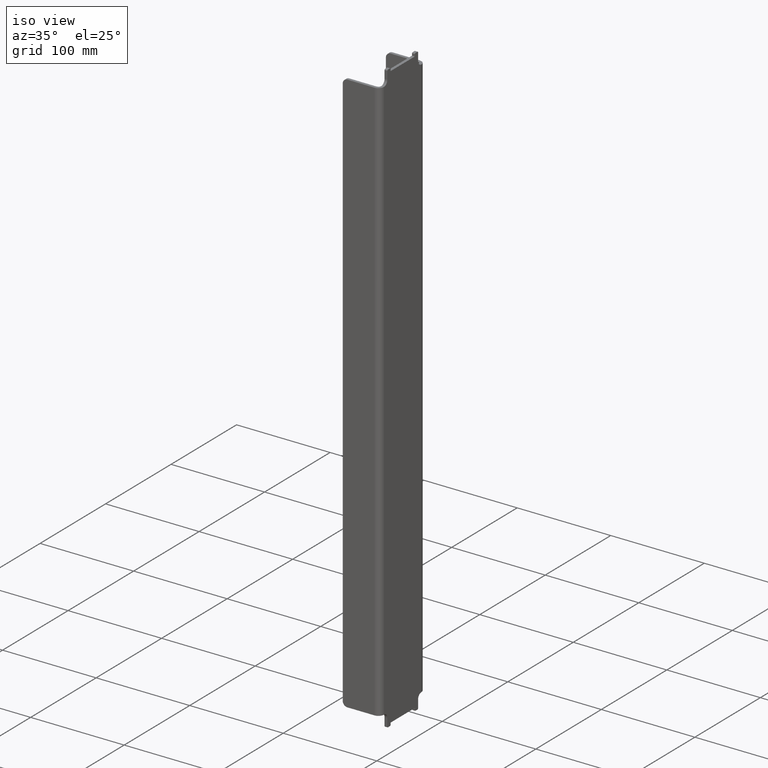
[diagram: clean part render]
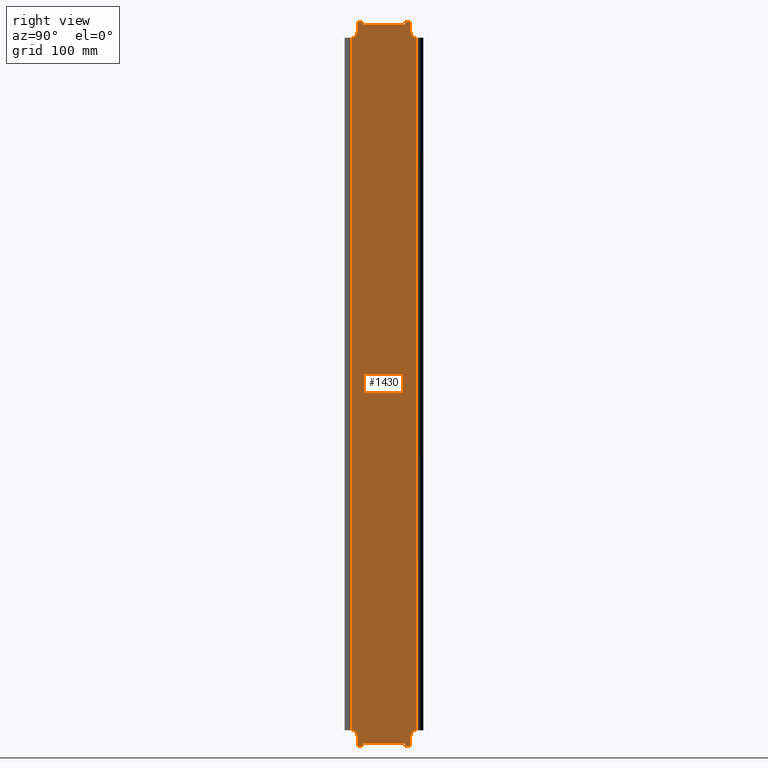
[diagram: tour spotlight — one face highlighted and labeled with its STEP entity id]
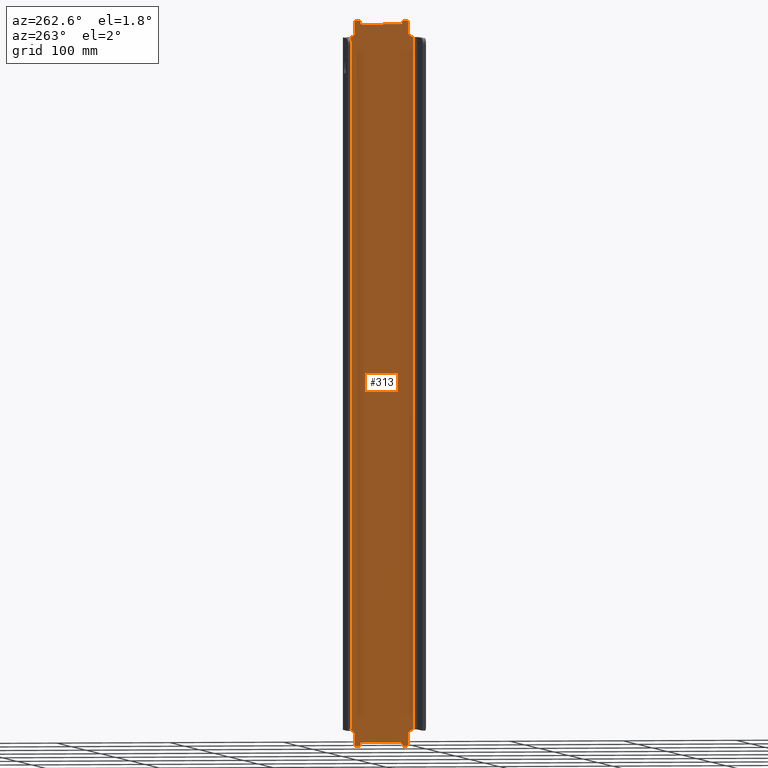
[diagram: tour spotlight — one face highlighted and labeled with its STEP entity id]
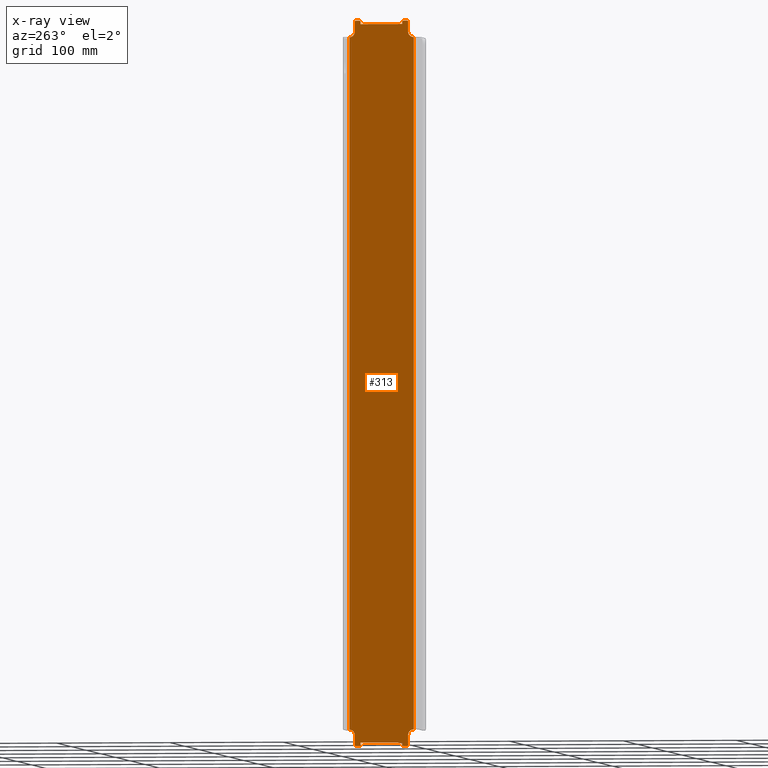
[diagram: x-ray of the same camera — body ghosted, this tour face saturated]
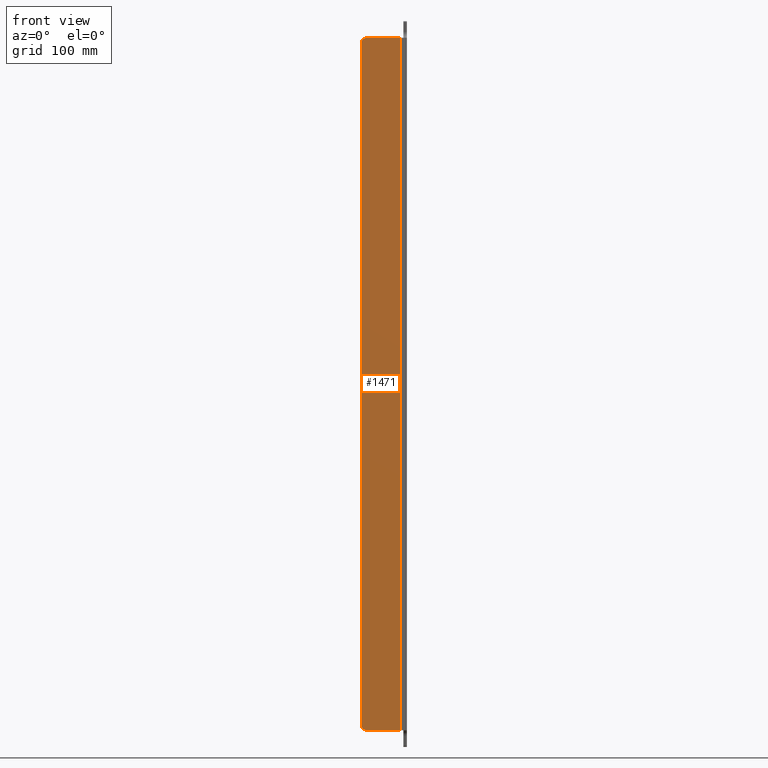
[diagram: tour spotlight — one face highlighted and labeled with its STEP entity id]
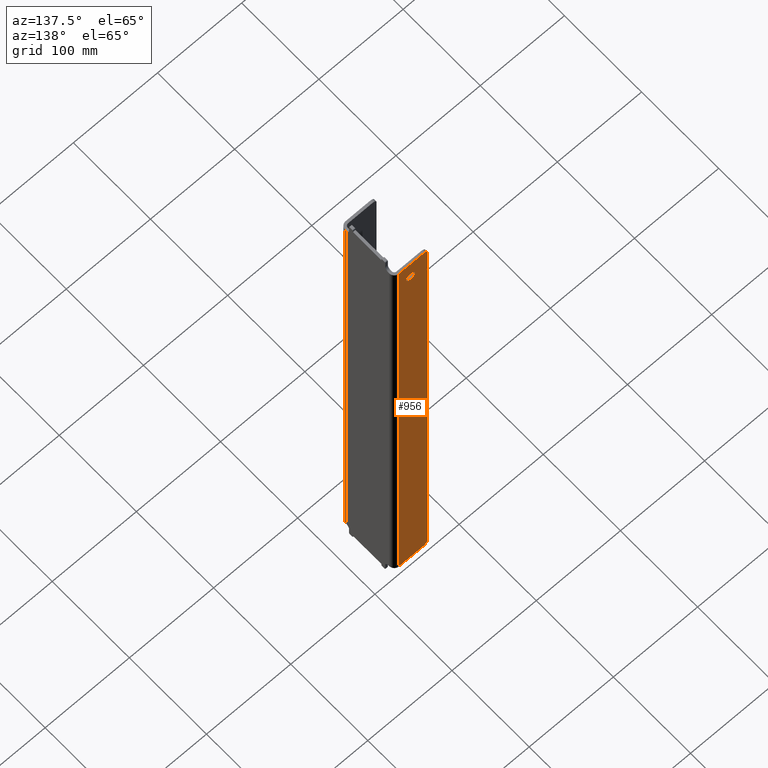
[diagram: tour spotlight — one face highlighted and labeled with its STEP entity id]
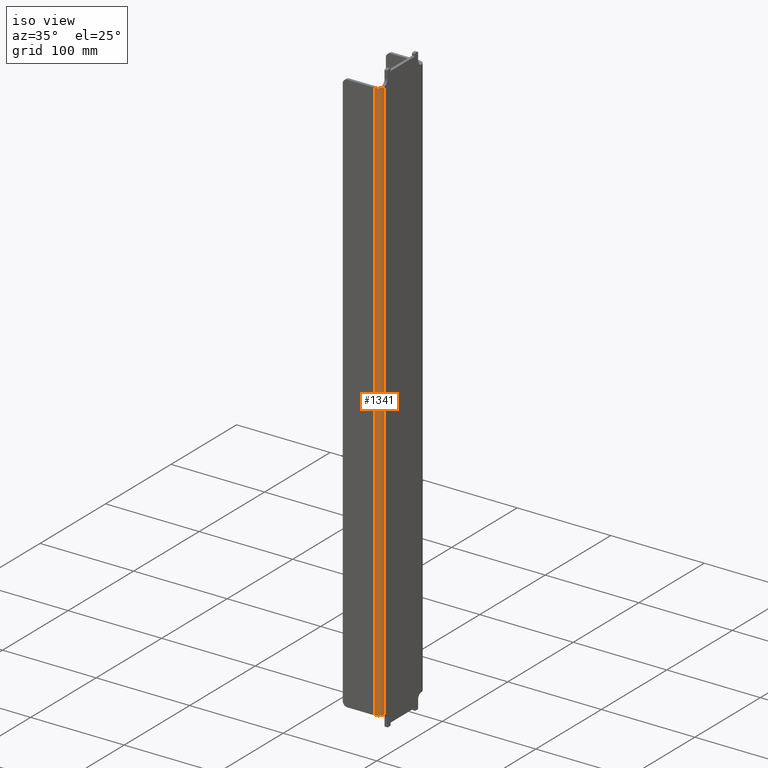
[diagram: tour spotlight — one face highlighted and labeled with its STEP entity id]
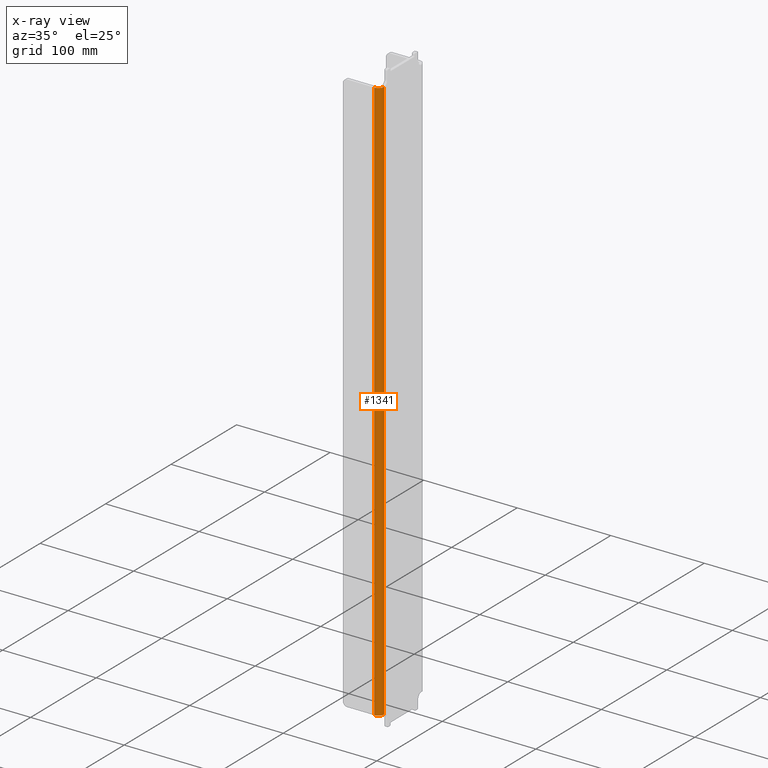
[diagram: x-ray of the same camera — body ghosted, this tour face saturated]
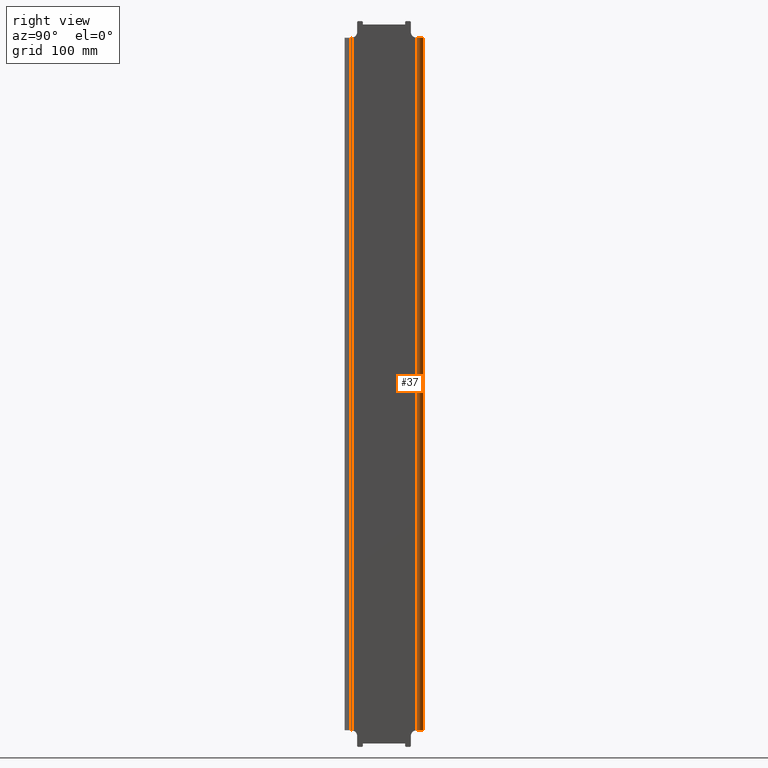
[diagram: tour spotlight — one face highlighted and labeled with its STEP entity id]
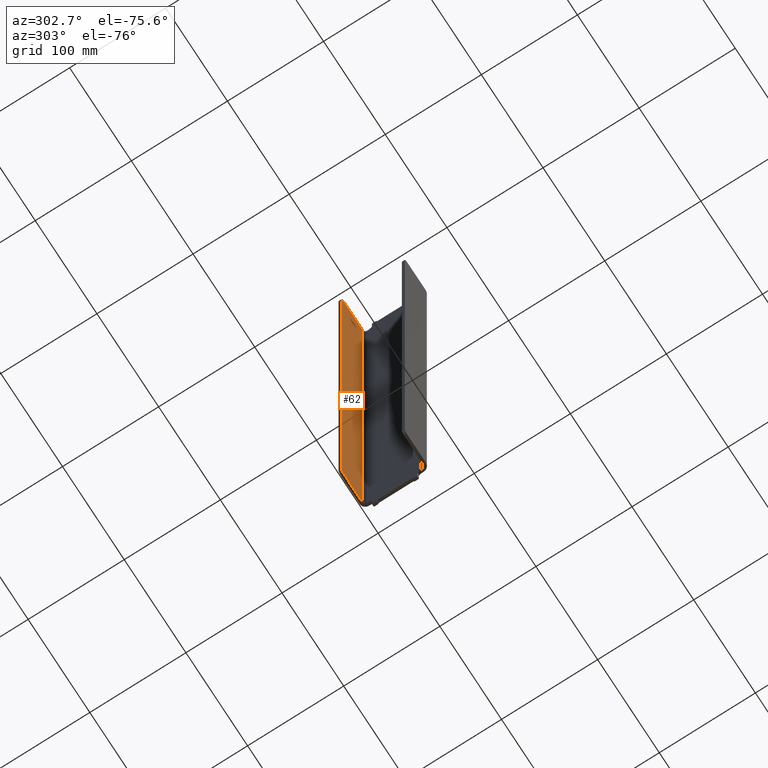
[diagram: tour spotlight — one face highlighted and labeled with its STEP entity id]
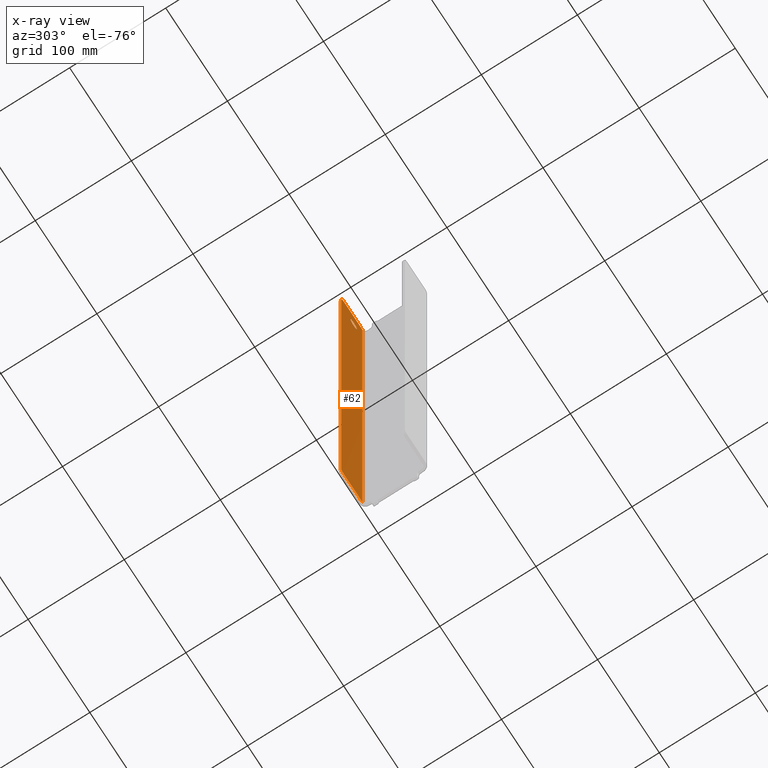
[diagram: x-ray of the same camera — body ghosted, this tour face saturated]
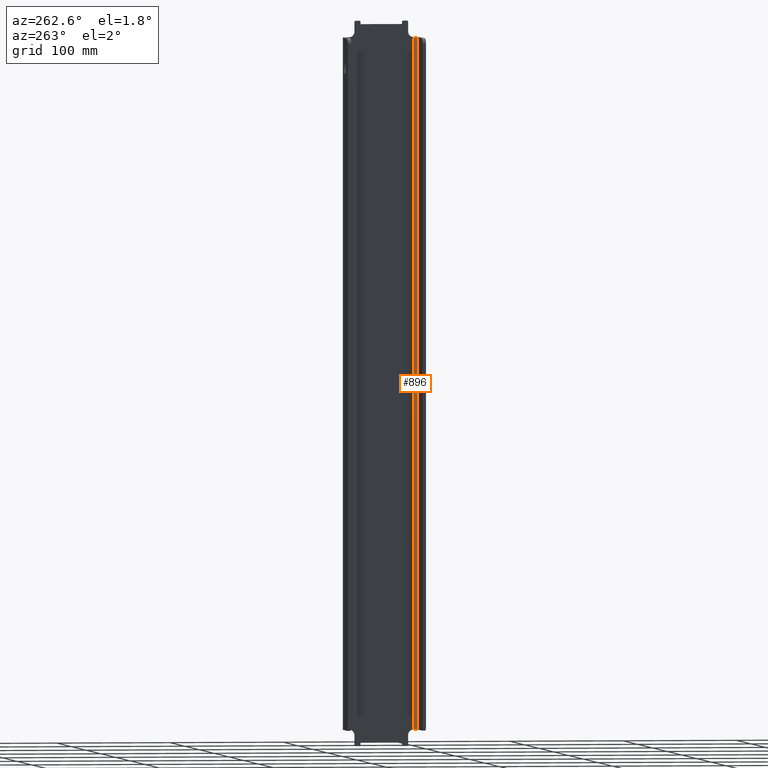
[diagram: tour spotlight — one face highlighted and labeled with its STEP entity id]
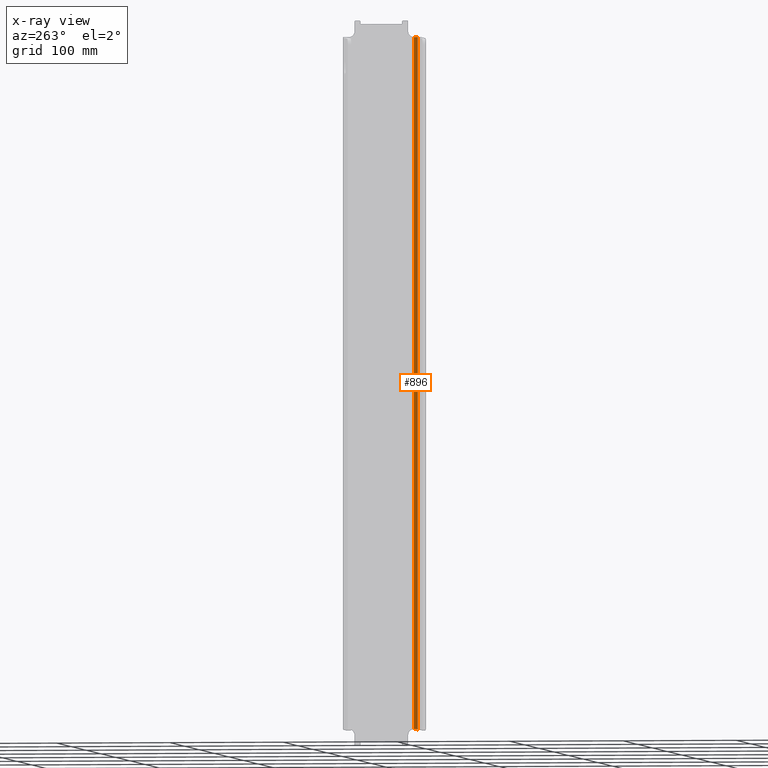
[diagram: x-ray of the same camera — body ghosted, this tour face saturated]
A machine part: a face-by-face anatomy tour. The part has 52 B-rep faces; the first image is the clean iso view, then the 8 largest visible faces are spotlighted one at a time (largest first), each with its STEP entity span.

Face 1 — right view, entity #1430. In plain terms, the highlighted planar face has unit normal (1, 0, -0).
Definition (entity closure, byte-faithful):
#3 = DIRECTION ( 'NONE',  ( 0.000000000000000000, 0.000000000000000000, -1.000000000000000000 ) ) ;
#14 = AXIS2_PLACEMENT_3D ( 'NONE', #607, #1380, #230 ) ;
#23 = ORIENTED_EDGE ( 'NONE', *, *, #1589, .F. ) ;
#42 = DIRECTION ( 'NONE',  ( 0.000000000000000000, 1.000000000000000000, 0.000000000000000000 ) ) ;
#44 = VECTOR ( 'NONE', #78, 1000.000000000000000 ) ;
#47 = CIRCLE ( 'NONE', #924, 1.000000000000000888 ) ;
#72 = CARTESIAN_POINT ( 'NONE',  ( -520.0000000000004547, -1109.305262667903662, 1259.500000000000227 ) ) ;
#78 = DIRECTION ( 'NONE',  ( -0.000000000000000000, 0.000000000000000000, -1.000000000000000000 ) ) ;
#80 = DIRECTION ( 'NONE',  ( 1.000000000000000000, 0.000000000000000000, -0.000000000000000000 ) ) ;
#83 = CARTESIAN_POINT ( 'NONE',  ( -520.0000000000004547, -1150.305262667904344, 1340.255877526362156 ) ) ;
#94 = CARTESIAN_POINT ( 'NONE',  ( -520.0000000000004547, -1108.305262667903662, 1340.255877526362156 ) ) ;
#99 = ORIENTED_EDGE ( 'NONE', *, *, #219, .F. ) ;
#102 = CIRCLE ( 'NONE', #1201, 1.000000000000000888 ) ;
#103 = VECTOR ( 'NONE', #177, 1000.000000000000000 ) ;
#121 = VECTOR ( 'NONE', #1167, 1000.000000000000000 ) ;
#128 = CARTESIAN_POINT ( 'NONE',  ( -520.0000000000004547, -1109.305262667903889, 626.0000000000001137 ) ) ;
#145 = VECTOR ( 'NONE', #1102, 1000.000000000000000 ) ;
#146 = DIRECTION ( 'NONE',  ( 0.000000000000000000, 0.000000000000000000, -1.000000000000000000 ) ) ;
#155 = DIRECTION ( 'NONE',  ( 0.000000000000000000, -0.000000000000000000, 1.000000000000000000 ) ) ;
#159 = DIRECTION ( 'NONE',  ( -1.000000000000000000, -0.000000000000000000, -0.000000000000000000 ) ) ;
#175 = ORIENTED_EDGE ( 'NONE', *, *, #451, .F. ) ;
#177 = DIRECTION ( 'NONE',  ( -0.000000000000000000, -1.000000000000000000, -0.000000000000000000 ) ) ;
#186 = AXIS2_PLACEMENT_3D ( 'NONE', #350, #80, #587 ) ;
#190 = LINE ( 'NONE', #1338, #1599 ) ;
#198 = AXIS2_PLACEMENT_3D ( 'NONE', #338, #1301, #1285 ) ;
#205 = LINE ( 'NONE', #83, #145 ) ;
#219 = EDGE_CURVE ( 'NONE', #335, #1523, #102, .T. ) ;
#222 = VERTEX_POINT ( 'NONE', #714 ) ;
#224 = ORIENTED_EDGE ( 'NONE', *, *, #1399, .F. ) ;
#230 = DIRECTION ( 'NONE',  ( 0.000000000000000000, 0.000000000000000000, -1.000000000000000000 ) ) ;
#236 = AXIS2_PLACEMENT_3D ( 'NONE', #1104, #1609, #457 ) ;
#249 = EDGE_CURVE ( 'NONE', #1420, #1364, #679, .T. ) ;
#267 = CARTESIAN_POINT ( 'NONE',  ( -520.0000000000004547, -1155.305262667904344, 1340.255877526362156 ) ) ;
#268 = CIRCLE ( 'NONE', #186, 4.999999999999893419 ) ;
#277 = CARTESIAN_POINT ( 'NONE',  ( -520.0000000000004547, -1112.305262667903889, 625.0000000000001137 ) ) ;
#284 = CARTESIAN_POINT ( 'NONE',  ( -520.0000000000004547, -1155.305262667904344, 1251.000000000000227 ) ) ;
#289 = VERTEX_POINT ( 'NONE', #903 ) ;
#294 = VECTOR ( 'NONE', #468, 1000.000000000000000 ) ;
#300 = CARTESIAN_POINT ( 'NONE',  ( -520.0000000000004547, -1093.805262667904117, 1260.500000000000227 ) ) ;
#306 = ORIENTED_EDGE ( 'NONE', *, *, #925, .T. ) ;
#323 = EDGE_CURVE ( 'NONE', #644, #1099, #1358, .T. ) ;
#325 = ORIENTED_EDGE ( 'NONE', *, *, #775, .F. ) ;
#335 = VERTEX_POINT ( 'NONE', #277 ) ;
#338 = CARTESIAN_POINT ( 'NONE',  ( -520.0000000000004547, -1112.305262667903662, 1259.500000000000227 ) ) ;
#350 = CARTESIAN_POINT ( 'NONE',  ( -520.0000000000004547, -1160.305262667904117, 1251.000000000000227 ) ) ;
#358 = CARTESIAN_POINT ( 'NONE',  ( -520.0000000000004547, -1112.305262667903662, 1260.500000000000227 ) ) ;
#366 = VECTOR ( 'NONE', #1397, 1000.000000000000000 ) ;
#368 = CARTESIAN_POINT ( 'NONE',  ( -520.0000000000004547, -1108.305262667903662, 1340.255877526362156 ) ) ;
#406 = CARTESIAN_POINT ( 'NONE',  ( -520.0000000000004547, -1113.305262667903662, 1340.255877526362156 ) ) ;
#409 = VERTEX_POINT ( 'NONE', #752 ) ;
#415 = CARTESIAN_POINT ( 'NONE',  ( -520.0000000000004547, -1108.305262667903662, 634.5000000000001137 ) ) ;
#426 = ORIENTED_EDGE ( 'NONE', *, *, #249, .F. ) ;
#436 = AXIS2_PLACEMENT_3D ( 'NONE', #981, #1491, #1482 ) ;
#438 = DIRECTION ( 'NONE',  ( 0.000000000000000000, 1.000000000000000000, 0.000000000000000000 ) ) ;
#443 = CARTESIAN_POINT ( 'NONE',  ( -520.0000000000004547, -1103.305262667904117, 639.5000000000000000 ) ) ;
#451 = EDGE_CURVE ( 'NONE', #790, #1420, #789, .T. ) ;
#457 = DIRECTION ( 'NONE',  ( 0.000000000000000000, 0.000000000000000000, -1.000000000000000000 ) ) ;
#468 = DIRECTION ( 'NONE',  ( -0.000000000000000000, -0.000000000000000000, -1.000000000000000000 ) ) ;
#469 = EDGE_CURVE ( 'NONE', #1510, #1480, #1563, .T. ) ;
#471 = AXIS2_PLACEMENT_3D ( 'NONE', #1292, #884, #1548 ) ;
#484 = EDGE_CURVE ( 'NONE', #982, #409, #190, .T. ) ;
#501 = VERTEX_POINT ( 'NONE', #1440 ) ;
#517 = DIRECTION ( 'NONE',  ( -1.000000000000000000, -0.000000000000000000, 0.000000000000000000 ) ) ;
#530 = CARTESIAN_POINT ( 'NONE',  ( -520.0000000000004547, -1108.305262667903889, 626.0000000000001137 ) ) ;
#537 = VERTEX_POINT ( 'NONE', #1206 ) ;
#538 = LINE ( 'NONE', #776, #1592 ) ;
#544 = VERTEX_POINT ( 'NONE', #567 ) ;
#548 = DIRECTION ( 'NONE',  ( -0.000000000000000000, 0.000000000000000000, -1.000000000000000000 ) ) ;
#567 = CARTESIAN_POINT ( 'NONE',  ( -520.0000000000004547, -1151.305262667904117, 1260.500000000000227 ) ) ;
#580 = VECTOR ( 'NONE', #1190, 1000.000000000000000 ) ;
#587 = DIRECTION ( 'NONE',  ( 0.000000000000000000, 0.000000000000000000, -1.000000000000000000 ) ) ;
#595 = CARTESIAN_POINT ( 'NONE',  ( -520.0000000000004547, -1108.305262667903662, 1251.000000000000227 ) ) ;
#607 = CARTESIAN_POINT ( 'NONE',  ( -520.0000000000004547, -1160.305262667904117, 634.5000000000001137 ) ) ;
#608 = ORIENTED_EDGE ( 'NONE', *, *, #1276, .F. ) ;
#615 = CARTESIAN_POINT ( 'NONE',  ( -520.0000000000004547, -1103.305262667904117, 1340.255877526362156 ) ) ;
#621 = DIRECTION ( 'NONE',  ( -1.000000000000000000, -0.000000000000000000, 0.000000000000000000 ) ) ;
#622 = AXIS2_PLACEMENT_3D ( 'NONE', #878, #621, #894 ) ;
#634 = DIRECTION ( 'NONE',  ( -0.000000000000000000, -0.000000000000000000, 1.000000000000000000 ) ) ;
#644 = VERTEX_POINT ( 'NONE', #595 ) ;
#657 = VECTOR ( 'NONE', #1210, 1000.000000000000000 ) ;
#659 = CARTESIAN_POINT ( 'NONE',  ( -520.0000000000004547, -1155.305262667904344, 634.5000000000001137 ) ) ;
#663 = CARTESIAN_POINT ( 'NONE',  ( -520.0000000000004547, -1113.305262667903889, 626.0000000000001137 ) ) ;
#679 = CIRCLE ( 'NONE', #236, 0.9999999999998898659 ) ;
#700 = CARTESIAN_POINT ( 'NONE',  ( -520.0000000000004547, -1093.805262667904117, 1260.500000000000227 ) ) ;
#714 = CARTESIAN_POINT ( 'NONE',  ( -520.0000000000004547, -1150.305262667904344, 628.0000000000001137 ) ) ;
#724 = ORIENTED_EDGE ( 'NONE', *, *, #469, .F. ) ;
#751 = CIRCLE ( 'NONE', #198, 0.9999999999998898659 ) ;
#752 = CARTESIAN_POINT ( 'NONE',  ( -520.0000000000004547, -1113.305262667903662, 1257.500000000000227 ) ) ;
#760 = ORIENTED_EDGE ( 'NONE', *, *, #323, .F. ) ;
#765 = VECTOR ( 'NONE', #548, 1000.000000000000000 ) ;
#772 = DIRECTION ( 'NONE',  ( -0.000000000000000000, 0.000000000000000000, -1.000000000000000000 ) ) ;
#775 = EDGE_CURVE ( 'NONE', #795, #850, #1515, .T. ) ;
#776 = CARTESIAN_POINT ( 'NONE',  ( -520.0000000000004547, -1113.305262667903889, 1340.255877526362156 ) ) ;
#780 = DIRECTION ( 'NONE',  ( 1.000000000000000000, 0.000000000000000000, -0.000000000000000000 ) ) ;
#781 = ORIENTED_EDGE ( 'NONE', *, *, #826, .F. ) ;
#782 = CIRCLE ( 'NONE', #859, 0.9999999999998898659 ) ;
#785 = AXIS2_PLACEMENT_3D ( 'NONE', #1320, #517, #1422 ) ;
#787 = CARTESIAN_POINT ( 'NONE',  ( -520.0000000000004547, -1150.305262667904117, 1259.500000000000227 ) ) ;
#788 = VERTEX_POINT ( 'NONE', #787 ) ;
#789 = LINE ( 'NONE', #797, #580 ) ;
#790 = VERTEX_POINT ( 'NONE', #284 ) ;
#793 = DIRECTION ( 'NONE',  ( 0.000000000000000000, 1.000000000000000000, 0.000000000000000000 ) ) ;
#795 = VERTEX_POINT ( 'NONE', #415 ) ;
#797 = CARTESIAN_POINT ( 'NONE',  ( -520.0000000000004547, -1155.305262667904344, 1340.255877526362156 ) ) ;
#801 = DIRECTION ( 'NONE',  ( -0.000000000000000000, -1.000000000000000000, -0.000000000000000000 ) ) ;
#805 = EDGE_CURVE ( 'NONE', #1516, #409, #931, .T. ) ;
#814 = LINE ( 'NONE', #1472, #294 ) ;
#817 = VERTEX_POINT ( 'NONE', #659 ) ;
#826 = EDGE_CURVE ( 'NONE', #544, #788, #1604, .T. ) ;
#831 = EDGE_LOOP ( 'NONE', ( #953, #1489, #1149, #224, #1345, #1325, #1249, #781, #1110, #426, #175, #932, #306, #1279, #1575, #1369, #724, #608, #1429, #1047, #1295, #99, #1385, #1650, #325, #23, #1581, #760 ) ) ;
#832 = CARTESIAN_POINT ( 'NONE',  ( -520.0000000000004547, -1112.305262667903889, 626.0000000000001137 ) ) ;
#840 = DIRECTION ( 'NONE',  ( 0.000000000000000000, 0.000000000000000000, -1.000000000000000000 ) ) ;
#846 = CARTESIAN_POINT ( 'NONE',  ( -520.0000000000004547, -1150.305262667904117, 1257.500000000000227 ) ) ;
#850 = VERTEX_POINT ( 'NONE', #530 ) ;
#854 = LINE ( 'NONE', #615, #1560 ) ;
#856 = CIRCLE ( 'NONE', #622, 1.000000000000000888 ) ;
#859 = AXIS2_PLACEMENT_3D ( 'NONE', #72, #1373, #840 ) ;
#862 = VECTOR ( 'NONE', #793, 1000.000000000000000 ) ;
#865 = LINE ( 'NONE', #267, #366 ) ;
#867 = DIRECTION ( 'NONE',  ( -0.000000000000000000, 0.000000000000000000, -1.000000000000000000 ) ) ;
#878 = CARTESIAN_POINT ( 'NONE',  ( -520.0000000000004547, -1154.305262667904344, 626.0000000000001137 ) ) ;
#879 = VERTEX_POINT ( 'NONE', #443 ) ;
#884 = DIRECTION ( 'NONE',  ( 1.000000000000000000, 0.000000000000000000, -0.000000000000000000 ) ) ;
#891 = EDGE_CURVE ( 'NONE', #788, #982, #1108, .T. ) ;
#894 = DIRECTION ( 'NONE',  ( 0.000000000000000000, 0.000000000000000000, -1.000000000000000000 ) ) ;
#903 = CARTESIAN_POINT ( 'NONE',  ( -520.0000000000004547, -1155.305262667904344, 626.0000000000001137 ) ) ;
#924 = AXIS2_PLACEMENT_3D ( 'NONE', #128, #1654, #3 ) ;
#925 = EDGE_CURVE ( 'NONE', #1132, #501, #814, .T. ) ;
#931 = LINE ( 'NONE', #406, #765 ) ;
#932 = ORIENTED_EDGE ( 'NONE', *, *, #979, .F. ) ;
#944 = CARTESIAN_POINT ( 'NONE',  ( -520.0000000000004547, -1154.305262667904344, 625.0000000000001137 ) ) ;
#953 = ORIENTED_EDGE ( 'NONE', *, *, #1298, .F. ) ;
#979 = EDGE_CURVE ( 'NONE', #1132, #790, #268, .T. ) ;
#981 = CARTESIAN_POINT ( 'NONE',  ( -520.0000000000004547, -1103.305262667904117, 634.5000000000001137 ) ) ;
#982 = VERTEX_POINT ( 'NONE', #846 ) ;
#991 = CARTESIAN_POINT ( 'NONE',  ( -520.0000000000004547, -1154.305262667904117, 1260.500000000000227 ) ) ;
#1007 = AXIS2_PLACEMENT_3D ( 'NONE', #1453, #159, #146 ) ;
#1023 = EDGE_CURVE ( 'NONE', #850, #537, #47, .T. ) ;
#1040 = LINE ( 'NONE', #1445, #1303 ) ;
#1047 = ORIENTED_EDGE ( 'NONE', *, *, #1519, .T. ) ;
#1086 = CARTESIAN_POINT ( 'NONE',  ( -520.0000000000004547, -1108.305262667903662, 1259.500000000000227 ) ) ;
#1088 = EDGE_CURVE ( 'NONE', #289, #817, #865, .T. ) ;
#1098 = LINE ( 'NONE', #94, #44 ) ;
#1099 = VERTEX_POINT ( 'NONE', #1405 ) ;
#1102 = DIRECTION ( 'NONE',  ( 0.000000000000000000, -0.000000000000000000, 1.000000000000000000 ) ) ;
#1104 = CARTESIAN_POINT ( 'NONE',  ( -520.0000000000004547, -1154.305262667904117, 1259.500000000000227 ) ) ;
#1108 = LINE ( 'NONE', #1620, #657 ) ;
#1110 = ORIENTED_EDGE ( 'NONE', *, *, #1262, .F. ) ;
#1116 = VERTEX_POINT ( 'NONE', #358 ) ;
#1130 = EDGE_CURVE ( 'NONE', #879, #1099, #854, .T. ) ;
#1132 = VERTEX_POINT ( 'NONE', #1157 ) ;
#1133 = EDGE_CURVE ( 'NONE', #817, #501, #1411, .T. ) ;
#1146 = VERTEX_POINT ( 'NONE', #1261 ) ;
#1149 = ORIENTED_EDGE ( 'NONE', *, *, #1222, .F. ) ;
#1157 = CARTESIAN_POINT ( 'NONE',  ( -520.0000000000004547, -1160.305262667904117, 1246.000000000000455 ) ) ;
#1162 = CIRCLE ( 'NONE', #436, 4.999999999999782396 ) ;
#1167 = DIRECTION ( 'NONE',  ( 0.000000000000000000, 1.000000000000000000, 0.000000000000000000 ) ) ;
#1185 = VERTEX_POINT ( 'NONE', #1216 ) ;
#1190 = DIRECTION ( 'NONE',  ( 0.000000000000000000, -0.000000000000000000, 1.000000000000000000 ) ) ;
#1201 = AXIS2_PLACEMENT_3D ( 'NONE', #832, #1346, #1356 ) ;
#1206 = CARTESIAN_POINT ( 'NONE',  ( -520.0000000000004547, -1109.305262667903889, 625.0000000000001137 ) ) ;
#1210 = DIRECTION ( 'NONE',  ( -0.000000000000000000, 0.000000000000000000, -1.000000000000000000 ) ) ;
#1213 = LINE ( 'NONE', #1596, #1379 ) ;
#1216 = CARTESIAN_POINT ( 'NONE',  ( -520.0000000000004547, -1109.305262667903662, 1260.500000000000227 ) ) ;
#1222 = EDGE_CURVE ( 'NONE', #1116, #1185, #1305, .T. ) ;
#1224 = CARTESIAN_POINT ( 'NONE',  ( -520.0000000000004547, -1150.305262667904344, 626.0000000000001137 ) ) ;
#1235 = EDGE_CURVE ( 'NONE', #1523, #1146, #538, .T. ) ;
#1249 = ORIENTED_EDGE ( 'NONE', *, *, #891, .F. ) ;
#1261 = CARTESIAN_POINT ( 'NONE',  ( -520.0000000000004547, -1113.305262667903889, 628.0000000000001137 ) ) ;
#1262 = EDGE_CURVE ( 'NONE', #1364, #544, #1477, .T. ) ;
#1267 = VERTEX_POINT ( 'NONE', #1224 ) ;
#1272 = EDGE_CURVE ( 'NONE', #537, #335, #1040, .T. ) ;
#1276 = EDGE_CURVE ( 'NONE', #1267, #1510, #1514, .T. ) ;
#1279 = ORIENTED_EDGE ( 'NONE', *, *, #1133, .F. ) ;
#1285 = DIRECTION ( 'NONE',  ( 0.000000000000000000, 0.000000000000000000, -1.000000000000000000 ) ) ;
#1292 = CARTESIAN_POINT ( 'NONE',  ( -520.0000000000004547, -1103.305262667904117, 1251.000000000000227 ) ) ;
#1295 = ORIENTED_EDGE ( 'NONE', *, *, #1235, .F. ) ;
#1298 = EDGE_CURVE ( 'NONE', #1564, #644, #1098, .T. ) ;
#1301 = DIRECTION ( 'NONE',  ( -1.000000000000000000, -0.000000000000000000, -0.000000000000000000 ) ) ;
#1303 = VECTOR ( 'NONE', #801, 1000.000000000000000 ) ;
#1305 = LINE ( 'NONE', #700, #121 ) ;
#1310 = CARTESIAN_POINT ( 'NONE',  ( -520.0000000000004547, -1151.305262667904344, 625.0000000000001137 ) ) ;
#1316 = CARTESIAN_POINT ( 'NONE',  ( -520.0000000000004547, -1093.805262667904117, 625.0000000000001137 ) ) ;
#1320 = CARTESIAN_POINT ( 'NONE',  ( -520.0000000000004547, -1151.305262667904344, 626.0000000000001137 ) ) ;
#1325 = ORIENTED_EDGE ( 'NONE', *, *, #484, .F. ) ;
#1338 = CARTESIAN_POINT ( 'NONE',  ( -520.0000000000004547, -1093.805262667904117, 1257.500000000000227 ) ) ;
#1345 = ORIENTED_EDGE ( 'NONE', *, *, #805, .T. ) ;
#1346 = DIRECTION ( 'NONE',  ( -1.000000000000000000, -0.000000000000000000, 0.000000000000000000 ) ) ;
#1356 = DIRECTION ( 'NONE',  ( 0.000000000000000000, 0.000000000000000000, -1.000000000000000000 ) ) ;
#1358 = CIRCLE ( 'NONE', #471, 4.999999999999893419 ) ;
#1364 = VERTEX_POINT ( 'NONE', #991 ) ;
#1369 = ORIENTED_EDGE ( 'NONE', *, *, #1421, .F. ) ;
#1373 = DIRECTION ( 'NONE',  ( -1.000000000000000000, -0.000000000000000000, -0.000000000000000000 ) ) ;
#1379 = VECTOR ( 'NONE', #438, 1000.000000000000000 ) ;
#1380 = DIRECTION ( 'NONE',  ( 1.000000000000000000, 0.000000000000000000, -0.000000000000000000 ) ) ;
#1385 = ORIENTED_EDGE ( 'NONE', *, *, #1272, .F. ) ;
#1397 = DIRECTION ( 'NONE',  ( 0.000000000000000000, -0.000000000000000000, 1.000000000000000000 ) ) ;
#1399 = EDGE_CURVE ( 'NONE', #1516, #1116, #751, .T. ) ;
#1403 = PLANE ( 'NONE',  #1618 ) ;
#1405 = CARTESIAN_POINT ( 'NONE',  ( -520.0000000000004547, -1103.305262667904117, 1246.000000000000455 ) ) ;
#1411 = CIRCLE ( 'NONE', #14, 4.999999999999782396 ) ;
#1417 = VECTOR ( 'NONE', #867, 1000.000000000000000 ) ;
#1420 = VERTEX_POINT ( 'NONE', #1528 ) ;
#1421 = EDGE_CURVE ( 'NONE', #1480, #289, #856, .T. ) ;
#1422 = DIRECTION ( 'NONE',  ( 0.000000000000000000, 0.000000000000000000, -1.000000000000000000 ) ) ;
#1429 = ORIENTED_EDGE ( 'NONE', *, *, #1597, .T. ) ;
#1430 = ADVANCED_FACE ( 'NONE', ( #1542 ), #1403, .T. ) ;
#1440 = CARTESIAN_POINT ( 'NONE',  ( -520.0000000000004547, -1160.305262667904117, 639.5000000000000000 ) ) ;
#1445 = CARTESIAN_POINT ( 'NONE',  ( -520.0000000000004547, -1093.805262667904117, 625.0000000000001137 ) ) ;
#1453 = CARTESIAN_POINT ( 'NONE',  ( -520.0000000000004547, -1151.305262667904117, 1259.500000000000227 ) ) ;
#1472 = CARTESIAN_POINT ( 'NONE',  ( -520.0000000000004547, -1160.305262667904117, 1340.255877526362156 ) ) ;
#1474 = CARTESIAN_POINT ( 'NONE',  ( -520.0000000000004547, -1113.305262667903662, 1259.500000000000227 ) ) ;
#1477 = LINE ( 'NONE', #300, #862 ) ;
#1480 = VERTEX_POINT ( 'NONE', #944 ) ;
#1482 = DIRECTION ( 'NONE',  ( 0.000000000000000000, 0.000000000000000000, -1.000000000000000000 ) ) ;
#1489 = ORIENTED_EDGE ( 'NONE', *, *, #1619, .F. ) ;
#1491 = DIRECTION ( 'NONE',  ( 1.000000000000000000, 0.000000000000000000, -0.000000000000000000 ) ) ;
#1510 = VERTEX_POINT ( 'NONE', #1310 ) ;
#1514 = CIRCLE ( 'NONE', #785, 1.000000000000000888 ) ;
#1515 = LINE ( 'NONE', #368, #1417 ) ;
#1516 = VERTEX_POINT ( 'NONE', #1474 ) ;
#1519 = EDGE_CURVE ( 'NONE', #222, #1146, #1213, .T. ) ;
#1523 = VERTEX_POINT ( 'NONE', #663 ) ;
#1528 = CARTESIAN_POINT ( 'NONE',  ( -520.0000000000004547, -1155.305262667904117, 1259.500000000000227 ) ) ;
#1534 = CARTESIAN_POINT ( 'NONE',  ( -520.0000000000004547, -1093.805262667904117, 1340.255877526362156 ) ) ;
#1542 = FACE_OUTER_BOUND ( 'NONE', #831, .T. ) ;
#1548 = DIRECTION ( 'NONE',  ( 0.000000000000000000, 0.000000000000000000, -1.000000000000000000 ) ) ;
#1560 = VECTOR ( 'NONE', #634, 1000.000000000000000 ) ;
#1563 = LINE ( 'NONE', #1316, #103 ) ;
#1564 = VERTEX_POINT ( 'NONE', #1086 ) ;
#1575 = ORIENTED_EDGE ( 'NONE', *, *, #1088, .F. ) ;
#1581 = ORIENTED_EDGE ( 'NONE', *, *, #1130, .T. ) ;
#1589 = EDGE_CURVE ( 'NONE', #879, #795, #1162, .T. ) ;
#1592 = VECTOR ( 'NONE', #155, 1000.000000000000000 ) ;
#1596 = CARTESIAN_POINT ( 'NONE',  ( -520.0000000000004547, -1093.805262667904117, 628.0000000000001137 ) ) ;
#1597 = EDGE_CURVE ( 'NONE', #1267, #222, #205, .T. ) ;
#1599 = VECTOR ( 'NONE', #42, 1000.000000000000000 ) ;
#1604 = CIRCLE ( 'NONE', #1007, 0.9999999999998898659 ) ;
#1609 = DIRECTION ( 'NONE',  ( -1.000000000000000000, -0.000000000000000000, -0.000000000000000000 ) ) ;
#1618 = AXIS2_PLACEMENT_3D ( 'NONE', #1534, #780, #772 ) ;
#1619 = EDGE_CURVE ( 'NONE', #1185, #1564, #782, .T. ) ;
#1620 = CARTESIAN_POINT ( 'NONE',  ( -520.0000000000004547, -1150.305262667904117, 1340.255877526362156 ) ) ;
#1650 = ORIENTED_EDGE ( 'NONE', *, *, #1023, .F. ) ;
#1654 = DIRECTION ( 'NONE',  ( -1.000000000000000000, -0.000000000000000000, 0.000000000000000000 ) ) ;

Face 2 — auxiliary view, entity #313. An x-ray twin of the same camera follows (body ghosted, this face saturated) — the face is partly hidden behind the body. In plain terms, the highlighted planar face has unit normal (1, 0, -0).
Definition (entity closure, byte-faithful):
#7 = CARTESIAN_POINT ( 'NONE',  ( -523.0000000000004547, -1113.305262667903889, 621.9999999999998863 ) ) ;
#16 = CARTESIAN_POINT ( 'NONE',  ( -523.0000000000004547, -1113.305262667903889, 626.0000000000001137 ) ) ;
#20 = CIRCLE ( 'NONE', #1172, 4.999999999999782396 ) ;
#26 = VECTOR ( 'NONE', #100, 1000.000000000000000 ) ;
#30 = DIRECTION ( 'NONE',  ( -1.000000000000000000, -0.000000000000000000, 0.000000000000000000 ) ) ;
#31 = ORIENTED_EDGE ( 'NONE', *, *, #1307, .F. ) ;
#40 = AXIS2_PLACEMENT_3D ( 'NONE', #1017, #1652, #498 ) ;
#50 = ORIENTED_EDGE ( 'NONE', *, *, #329, .T. ) ;
#54 = EDGE_CURVE ( 'NONE', #596, #141, #1435, .T. ) ;
#57 = DIRECTION ( 'NONE',  ( 0.000000000000000000, -0.000000000000000000, 1.000000000000000000 ) ) ;
#59 = CARTESIAN_POINT ( 'NONE',  ( -523.0000000000004547, -1150.305262667904344, 628.0000000000001137 ) ) ;
#77 = AXIS2_PLACEMENT_3D ( 'NONE', #173, #940, #1196 ) ;
#92 = VERTEX_POINT ( 'NONE', #678 ) ;
#95 = CIRCLE ( 'NONE', #174, 1.000000000000000888 ) ;
#96 = ORIENTED_EDGE ( 'NONE', *, *, #937, .T. ) ;
#100 = DIRECTION ( 'NONE',  ( 0.000000000000000000, -1.000000000000000000, 0.000000000000000000 ) ) ;
#101 = DIRECTION ( 'NONE',  ( 0.000000000000000000, 0.000000000000000000, -1.000000000000000000 ) ) ;
#104 = LINE ( 'NONE', #1268, #619 ) ;
#119 = VERTEX_POINT ( 'NONE', #59 ) ;
#124 = CARTESIAN_POINT ( 'NONE',  ( -523.0000000000004547, -1112.305262667903662, 1260.500000000000227 ) ) ;
#133 = VERTEX_POINT ( 'NONE', #355 ) ;
#141 = VERTEX_POINT ( 'NONE', #990 ) ;
#143 = DIRECTION ( 'NONE',  ( -1.000000000000000000, -0.000000000000000000, 0.000000000000000000 ) ) ;
#156 = CIRCLE ( 'NONE', #1091, 0.9999999999998898659 ) ;
#163 = CARTESIAN_POINT ( 'NONE',  ( -523.0000000000004547, -1112.305262667903889, 626.0000000000001137 ) ) ;
#164 = ORIENTED_EDGE ( 'NONE', *, *, #1458, .F. ) ;
#167 = VERTEX_POINT ( 'NONE', #734 ) ;
#169 = CARTESIAN_POINT ( 'NONE',  ( -523.0000000000004547, -1150.305262667904344, 621.9999999999998863 ) ) ;
#171 = EDGE_CURVE ( 'NONE', #315, #1574, #1616, .T. ) ;
#173 = CARTESIAN_POINT ( 'NONE',  ( -523.0000000000004547, -1160.305262667904117, 1251.000000000000227 ) ) ;
#174 = AXIS2_PLACEMENT_3D ( 'NONE', #163, #1207, #1466 ) ;
#193 = DIRECTION ( 'NONE',  ( -1.000000000000000000, -0.000000000000000000, -0.000000000000000000 ) ) ;
#194 = CARTESIAN_POINT ( 'NONE',  ( -523.0000000000004547, -1103.305262667904117, 1251.000000000000227 ) ) ;
#196 = DIRECTION ( 'NONE',  ( -1.000000000000000000, -0.000000000000000000, -0.000000000000000000 ) ) ;
#202 = EDGE_CURVE ( 'NONE', #706, #92, #794, .T. ) ;
#215 = LINE ( 'NONE', #960, #1511 ) ;
#232 = CARTESIAN_POINT ( 'NONE',  ( -523.0000000000004547, -1160.305262667904117, 639.5000000000000000 ) ) ;
#244 = CARTESIAN_POINT ( 'NONE',  ( -523.0000000000004547, -1150.305262667904117, 1260.500000000000227 ) ) ;
#255 = AXIS2_PLACEMENT_3D ( 'NONE', #1518, #844, #1396 ) ;
#261 = LINE ( 'NONE', #244, #1144 ) ;
#262 = EDGE_LOOP ( 'NONE', ( #1538, #96, #381, #682, #1084, #1374, #344, #936, #766, #31, #1289, #746, #387, #1615, #908, #1042, #164, #1018, #374, #1006, #50, #506, #1021, #1124, #664, #327, #1271, #809 ) ) ;
#273 = CARTESIAN_POINT ( 'NONE',  ( -523.0000000000004547, -1154.305262667904344, 626.0000000000001137 ) ) ;
#278 = DIRECTION ( 'NONE',  ( -0.000000000000000000, 0.000000000000000000, -1.000000000000000000 ) ) ;
#297 = DIRECTION ( 'NONE',  ( 0.000000000000000000, 0.000000000000000000, -1.000000000000000000 ) ) ;
#310 = CIRCLE ( 'NONE', #939, 1.000000000000000888 ) ;
#313 = ADVANCED_FACE ( 'NONE', ( #507 ), #400, .F. ) ;
#315 = VERTEX_POINT ( 'NONE', #1651 ) ;
#324 = DIRECTION ( 'NONE',  ( 0.000000000000000000, 0.000000000000000000, -1.000000000000000000 ) ) ;
#327 = ORIENTED_EDGE ( 'NONE', *, *, #1409, .T. ) ;
#329 = EDGE_CURVE ( 'NONE', #1413, #1113, #261, .T. ) ;
#344 = ORIENTED_EDGE ( 'NONE', *, *, #1342, .T. ) ;
#355 = CARTESIAN_POINT ( 'NONE',  ( -523.0000000000004547, -1155.305262667904344, 626.0000000000001137 ) ) ;
#371 = DIRECTION ( 'NONE',  ( 1.000000000000000000, 0.000000000000000000, -0.000000000000000000 ) ) ;
#372 = DIRECTION ( 'NONE',  ( -0.000000000000000000, 1.000000000000000000, 0.000000000000000000 ) ) ;
#374 = ORIENTED_EDGE ( 'NONE', *, *, #54, .T. ) ;
#375 = EDGE_CURVE ( 'NONE', #1371, #1608, #20, .T. ) ;
#381 = ORIENTED_EDGE ( 'NONE', *, *, #1584, .F. ) ;
#382 = CARTESIAN_POINT ( 'NONE',  ( -523.0000000000004547, -1113.305262667903662, 1259.500000000000227 ) ) ;
#385 = VERTEX_POINT ( 'NONE', #1008 ) ;
#386 = DIRECTION ( 'NONE',  ( 1.000000000000000000, 0.000000000000000000, -0.000000000000000000 ) ) ;
#387 = ORIENTED_EDGE ( 'NONE', *, *, #171, .T. ) ;
#400 = PLANE ( 'NONE',  #730 ) ;
#408 = DIRECTION ( 'NONE',  ( -0.000000000000000000, 0.000000000000000000, -1.000000000000000000 ) ) ;
#410 = VERTEX_POINT ( 'NONE', #124 ) ;
#411 = EDGE_CURVE ( 'NONE', #1087, #1161, #628, .T. ) ;
#413 = CARTESIAN_POINT ( 'NONE',  ( -523.0000000000004547, -1151.305262667904117, 1259.500000000000227 ) ) ;
#425 = LINE ( 'NONE', #169, #461 ) ;
#434 = DIRECTION ( 'NONE',  ( 0.000000000000000000, -0.000000000000000000, 1.000000000000000000 ) ) ;
#461 = VECTOR ( 'NONE', #57, 1000.000000000000000 ) ;
#482 = CARTESIAN_POINT ( 'NONE',  ( -523.0000000000004547, -1109.305262667903662, 1259.500000000000227 ) ) ;
#492 = LINE ( 'NONE', #1000, #995 ) ;
#498 = DIRECTION ( 'NONE',  ( 0.000000000000000000, 0.000000000000000000, -1.000000000000000000 ) ) ;
#500 = CIRCLE ( 'NONE', #1442, 4.999999999999893419 ) ;
#506 = ORIENTED_EDGE ( 'NONE', *, *, #1254, .T. ) ;
#507 = FACE_OUTER_BOUND ( 'NONE', #262, .T. ) ;
#514 = DIRECTION ( 'NONE',  ( 0.000000000000000000, -0.000000000000000000, 1.000000000000000000 ) ) ;
#516 = VECTOR ( 'NONE', #297, 1000.000000000000000 ) ;
#542 = CARTESIAN_POINT ( 'NONE',  ( -523.0000000000004547, -1108.305262667903662, 1340.255877526362156 ) ) ;
#552 = CARTESIAN_POINT ( 'NONE',  ( -523.0000000000004547, -1155.305262667904344, 1340.255877526362156 ) ) ;
#557 = VECTOR ( 'NONE', #408, 1000.000000000000000 ) ;
#560 = VERTEX_POINT ( 'NONE', #951 ) ;
#563 = CARTESIAN_POINT ( 'NONE',  ( -523.0000000000004547, -1155.305262667904344, 1340.255877526362156 ) ) ;
#564 = DIRECTION ( 'NONE',  ( 0.000000000000000000, 0.000000000000000000, -1.000000000000000000 ) ) ;
#578 = CARTESIAN_POINT ( 'NONE',  ( -523.0000000000004547, -1109.305262667903662, 1260.500000000000227 ) ) ;
#596 = VERTEX_POINT ( 'NONE', #696 ) ;
#599 = VERTEX_POINT ( 'NONE', #1353 ) ;
#603 = DIRECTION ( 'NONE',  ( 1.000000000000000000, 0.000000000000000000, -0.000000000000000000 ) ) ;
#605 = CARTESIAN_POINT ( 'NONE',  ( -523.0000000000004547, -1093.805262667904117, 628.0000000000001137 ) ) ;
#619 = VECTOR ( 'NONE', #1288, 1000.000000000000000 ) ;
#628 = LINE ( 'NONE', #1571, #557 ) ;
#652 = LINE ( 'NONE', #1427, #1562 ) ;
#660 = VERTEX_POINT ( 'NONE', #822 ) ;
#661 = EDGE_CURVE ( 'NONE', #1153, #1221, #156, .T. ) ;
#664 = ORIENTED_EDGE ( 'NONE', *, *, #411, .F. ) ;
#667 = VERTEX_POINT ( 'NONE', #1219 ) ;
#678 = CARTESIAN_POINT ( 'NONE',  ( -523.0000000000004547, -1108.305262667903662, 634.5000000000001137 ) ) ;
#681 = CIRCLE ( 'NONE', #77, 4.999999999999893419 ) ;
#682 = ORIENTED_EDGE ( 'NONE', *, *, #202, .T. ) ;
#694 = VECTOR ( 'NONE', #1636, 1000.000000000000000 ) ;
#696 = CARTESIAN_POINT ( 'NONE',  ( -523.0000000000004547, -1155.305262667904344, 1251.000000000000227 ) ) ;
#706 = VERTEX_POINT ( 'NONE', #1406 ) ;
#716 = LINE ( 'NONE', #605, #1275 ) ;
#727 = CIRCLE ( 'NONE', #941, 0.9999999999998898659 ) ;
#730 = AXIS2_PLACEMENT_3D ( 'NONE', #1533, #386, #1402 ) ;
#734 = CARTESIAN_POINT ( 'NONE',  ( -523.0000000000004547, -1112.305262667903889, 625.0000000000001137 ) ) ;
#746 = ORIENTED_EDGE ( 'NONE', *, *, #853, .T. ) ;
#761 = AXIS2_PLACEMENT_3D ( 'NONE', #1258, #603, #1642 ) ;
#766 = ORIENTED_EDGE ( 'NONE', *, *, #1428, .T. ) ;
#768 = CARTESIAN_POINT ( 'NONE',  ( -523.0000000000004547, -1151.305262667904117, 1260.500000000000227 ) ) ;
#794 = CIRCLE ( 'NONE', #761, 4.999999999999782396 ) ;
#798 = LINE ( 'NONE', #552, #1193 ) ;
#807 = VERTEX_POINT ( 'NONE', #1446 ) ;
#809 = ORIENTED_EDGE ( 'NONE', *, *, #661, .T. ) ;
#812 = VECTOR ( 'NONE', #434, 1000.000000000000000 ) ;
#820 = EDGE_CURVE ( 'NONE', #599, #596, #681, .T. ) ;
#821 = DIRECTION ( 'NONE',  ( 0.000000000000000000, 1.000000000000000000, 0.000000000000000000 ) ) ;
#822 = CARTESIAN_POINT ( 'NONE',  ( -523.0000000000004547, -1150.305262667904117, 1257.500000000000227 ) ) ;
#830 = DIRECTION ( 'NONE',  ( 0.000000000000000000, -0.000000000000000000, 1.000000000000000000 ) ) ;
#844 = DIRECTION ( 'NONE',  ( -1.000000000000000000, -0.000000000000000000, -0.000000000000000000 ) ) ;
#851 = CARTESIAN_POINT ( 'NONE',  ( -523.0000000000004547, -1155.305262667904344, 625.0000000000001137 ) ) ;
#853 = EDGE_CURVE ( 'NONE', #560, #315, #1120, .T. ) ;
#861 = CARTESIAN_POINT ( 'NONE',  ( -523.0000000000004547, -1155.305262667904344, 634.5000000000001137 ) ) ;
#907 = CARTESIAN_POINT ( 'NONE',  ( -523.0000000000004547, -1151.305262667904344, 626.0000000000001137 ) ) ;
#908 = ORIENTED_EDGE ( 'NONE', *, *, #1502, .T. ) ;
#912 = CIRCLE ( 'NONE', #255, 0.9999999999998898659 ) ;
#922 = VECTOR ( 'NONE', #821, 1000.000000000000000 ) ;
#923 = DIRECTION ( 'NONE',  ( 0.000000000000000000, 0.000000000000000000, -1.000000000000000000 ) ) ;
#933 = EDGE_CURVE ( 'NONE', #1221, #667, #957, .T. ) ;
#936 = ORIENTED_EDGE ( 'NONE', *, *, #1522, .T. ) ;
#937 = EDGE_CURVE ( 'NONE', #667, #1520, #500, .T. ) ;
#939 = AXIS2_PLACEMENT_3D ( 'NONE', #1274, #1555, #1199 ) ;
#940 = DIRECTION ( 'NONE',  ( 1.000000000000000000, 0.000000000000000000, -0.000000000000000000 ) ) ;
#941 = AXIS2_PLACEMENT_3D ( 'NONE', #413, #193, #923 ) ;
#945 = EDGE_CURVE ( 'NONE', #660, #1161, #1350, .T. ) ;
#949 = AXIS2_PLACEMENT_3D ( 'NONE', #907, #30, #564 ) ;
#951 = CARTESIAN_POINT ( 'NONE',  ( -523.0000000000004547, -1150.305262667904344, 626.0000000000001137 ) ) ;
#952 = LINE ( 'NONE', #542, #516 ) ;
#957 = LINE ( 'NONE', #1229, #1228 ) ;
#960 = CARTESIAN_POINT ( 'NONE',  ( -523.0000000000004547, -1103.305262667904117, 1340.255877526362156 ) ) ;
#974 = CARTESIAN_POINT ( 'NONE',  ( -523.0000000000004547, -1113.305262667903889, 625.0000000000001137 ) ) ;
#990 = CARTESIAN_POINT ( 'NONE',  ( -523.0000000000004547, -1155.305262667904117, 1259.500000000000227 ) ) ;
#995 = VECTOR ( 'NONE', #372, 1000.000000000000000 ) ;
#1000 = CARTESIAN_POINT ( 'NONE',  ( -523.0000000000004547, -1108.305262667903662, 1260.500000000000227 ) ) ;
#1001 = AXIS2_PLACEMENT_3D ( 'NONE', #273, #143, #101 ) ;
#1006 = ORIENTED_EDGE ( 'NONE', *, *, #1365, .T. ) ;
#1008 = CARTESIAN_POINT ( 'NONE',  ( -523.0000000000004547, -1108.305262667903889, 626.0000000000001137 ) ) ;
#1017 = CARTESIAN_POINT ( 'NONE',  ( -523.0000000000004547, -1112.305262667903662, 1259.500000000000227 ) ) ;
#1018 = ORIENTED_EDGE ( 'NONE', *, *, #820, .T. ) ;
#1021 = ORIENTED_EDGE ( 'NONE', *, *, #1119, .T. ) ;
#1026 = VECTOR ( 'NONE', #514, 1000.000000000000000 ) ;
#1042 = ORIENTED_EDGE ( 'NONE', *, *, #375, .T. ) ;
#1058 = CIRCLE ( 'NONE', #1001, 1.000000000000000888 ) ;
#1074 = VERTEX_POINT ( 'NONE', #1136 ) ;
#1084 = ORIENTED_EDGE ( 'NONE', *, *, #1567, .T. ) ;
#1087 = VERTEX_POINT ( 'NONE', #382 ) ;
#1091 = AXIS2_PLACEMENT_3D ( 'NONE', #482, #196, #1506 ) ;
#1113 = VERTEX_POINT ( 'NONE', #768 ) ;
#1115 = DIRECTION ( 'NONE',  ( 0.000000000000000000, 1.000000000000000000, 0.000000000000000000 ) ) ;
#1119 = EDGE_CURVE ( 'NONE', #807, #660, #104, .T. ) ;
#1120 = CIRCLE ( 'NONE', #949, 1.000000000000000888 ) ;
#1124 = ORIENTED_EDGE ( 'NONE', *, *, #945, .T. ) ;
#1136 = CARTESIAN_POINT ( 'NONE',  ( -523.0000000000004547, -1113.305262667903889, 628.0000000000001137 ) ) ;
#1144 = VECTOR ( 'NONE', #1174, 1000.000000000000000 ) ;
#1153 = VERTEX_POINT ( 'NONE', #578 ) ;
#1154 = CARTESIAN_POINT ( 'NONE',  ( -523.0000000000004547, -1160.305262667904117, 634.5000000000001137 ) ) ;
#1161 = VERTEX_POINT ( 'NONE', #1551 ) ;
#1164 = CARTESIAN_POINT ( 'NONE',  ( -523.0000000000004547, -1154.305262667904117, 1260.500000000000227 ) ) ;
#1172 = AXIS2_PLACEMENT_3D ( 'NONE', #1154, #371, #1541 ) ;
#1174 = DIRECTION ( 'NONE',  ( -0.000000000000000000, 1.000000000000000000, 0.000000000000000000 ) ) ;
#1175 = LINE ( 'NONE', #7, #1026 ) ;
#1193 = VECTOR ( 'NONE', #1572, 1000.000000000000000 ) ;
#1196 = DIRECTION ( 'NONE',  ( 0.000000000000000000, 0.000000000000000000, -1.000000000000000000 ) ) ;
#1199 = DIRECTION ( 'NONE',  ( 0.000000000000000000, 0.000000000000000000, -1.000000000000000000 ) ) ;
#1207 = DIRECTION ( 'NONE',  ( -1.000000000000000000, -0.000000000000000000, 0.000000000000000000 ) ) ;
#1219 = CARTESIAN_POINT ( 'NONE',  ( -523.0000000000004547, -1108.305262667903662, 1251.000000000000227 ) ) ;
#1221 = VERTEX_POINT ( 'NONE', #1568 ) ;
#1228 = VECTOR ( 'NONE', #1370, 1000.000000000000000 ) ;
#1229 = CARTESIAN_POINT ( 'NONE',  ( -523.0000000000004547, -1108.305262667903662, 1340.255877526362156 ) ) ;
#1245 = CARTESIAN_POINT ( 'NONE',  ( -523.0000000000004547, -1093.805262667904117, 1257.500000000000227 ) ) ;
#1254 = EDGE_CURVE ( 'NONE', #1113, #807, #727, .T. ) ;
#1258 = CARTESIAN_POINT ( 'NONE',  ( -523.0000000000004547, -1103.305262667904117, 634.5000000000001137 ) ) ;
#1268 = CARTESIAN_POINT ( 'NONE',  ( -523.0000000000004547, -1150.305262667904117, 1263.500000000000909 ) ) ;
#1271 = ORIENTED_EDGE ( 'NONE', *, *, #1378, .T. ) ;
#1274 = CARTESIAN_POINT ( 'NONE',  ( -523.0000000000004547, -1109.305262667903889, 626.0000000000001137 ) ) ;
#1275 = VECTOR ( 'NONE', #1115, 1000.000000000000000 ) ;
#1287 = EDGE_CURVE ( 'NONE', #1574, #133, #1058, .T. ) ;
#1288 = DIRECTION ( 'NONE',  ( -0.000000000000000000, 0.000000000000000000, -1.000000000000000000 ) ) ;
#1289 = ORIENTED_EDGE ( 'NONE', *, *, #1549, .F. ) ;
#1307 = EDGE_CURVE ( 'NONE', #119, #1074, #716, .T. ) ;
#1332 = VERTEX_POINT ( 'NONE', #1610 ) ;
#1342 = EDGE_CURVE ( 'NONE', #1332, #167, #1367, .T. ) ;
#1348 = CIRCLE ( 'NONE', #40, 0.9999999999998898659 ) ;
#1350 = LINE ( 'NONE', #1245, #922 ) ;
#1353 = CARTESIAN_POINT ( 'NONE',  ( -523.0000000000004547, -1160.305262667904117, 1246.000000000000455 ) ) ;
#1361 = DIRECTION ( 'NONE',  ( 1.000000000000000000, 0.000000000000000000, -0.000000000000000000 ) ) ;
#1365 = EDGE_CURVE ( 'NONE', #141, #1413, #912, .T. ) ;
#1367 = LINE ( 'NONE', #974, #694 ) ;
#1370 = DIRECTION ( 'NONE',  ( 0.000000000000000000, 0.000000000000000000, -1.000000000000000000 ) ) ;
#1371 = VERTEX_POINT ( 'NONE', #861 ) ;
#1374 = ORIENTED_EDGE ( 'NONE', *, *, #1478, .T. ) ;
#1378 = EDGE_CURVE ( 'NONE', #410, #1153, #492, .T. ) ;
#1396 = DIRECTION ( 'NONE',  ( 0.000000000000000000, 0.000000000000000000, -1.000000000000000000 ) ) ;
#1402 = DIRECTION ( 'NONE',  ( -0.000000000000000000, 0.000000000000000000, -1.000000000000000000 ) ) ;
#1406 = CARTESIAN_POINT ( 'NONE',  ( -523.0000000000004547, -1103.305262667904117, 639.5000000000000000 ) ) ;
#1409 = EDGE_CURVE ( 'NONE', #1087, #410, #1348, .T. ) ;
#1413 = VERTEX_POINT ( 'NONE', #1164 ) ;
#1427 = CARTESIAN_POINT ( 'NONE',  ( -523.0000000000004547, -1160.305262667904117, 1340.255877526362156 ) ) ;
#1428 = EDGE_CURVE ( 'NONE', #1447, #1074, #1175, .T. ) ;
#1435 = LINE ( 'NONE', #563, #812 ) ;
#1441 = CARTESIAN_POINT ( 'NONE',  ( -523.0000000000004547, -1103.305262667904117, 1246.000000000000455 ) ) ;
#1442 = AXIS2_PLACEMENT_3D ( 'NONE', #194, #1361, #324 ) ;
#1446 = CARTESIAN_POINT ( 'NONE',  ( -523.0000000000004547, -1150.305262667904117, 1259.500000000000227 ) ) ;
#1447 = VERTEX_POINT ( 'NONE', #16 ) ;
#1456 = CARTESIAN_POINT ( 'NONE',  ( -523.0000000000004547, -1154.305262667904344, 625.0000000000001137 ) ) ;
#1458 = EDGE_CURVE ( 'NONE', #599, #1608, #652, .T. ) ;
#1466 = DIRECTION ( 'NONE',  ( 0.000000000000000000, 0.000000000000000000, -1.000000000000000000 ) ) ;
#1478 = EDGE_CURVE ( 'NONE', #385, #1332, #310, .T. ) ;
#1502 = EDGE_CURVE ( 'NONE', #133, #1371, #798, .T. ) ;
#1506 = DIRECTION ( 'NONE',  ( 0.000000000000000000, 0.000000000000000000, -1.000000000000000000 ) ) ;
#1511 = VECTOR ( 'NONE', #830, 1000.000000000000000 ) ;
#1518 = CARTESIAN_POINT ( 'NONE',  ( -523.0000000000004547, -1154.305262667904117, 1259.500000000000227 ) ) ;
#1520 = VERTEX_POINT ( 'NONE', #1441 ) ;
#1522 = EDGE_CURVE ( 'NONE', #167, #1447, #95, .T. ) ;
#1533 = CARTESIAN_POINT ( 'NONE',  ( -523.0000000000004547, -1093.805262667904117, 1340.255877526362156 ) ) ;
#1538 = ORIENTED_EDGE ( 'NONE', *, *, #933, .T. ) ;
#1541 = DIRECTION ( 'NONE',  ( 0.000000000000000000, 0.000000000000000000, -1.000000000000000000 ) ) ;
#1549 = EDGE_CURVE ( 'NONE', #560, #119, #425, .T. ) ;
#1551 = CARTESIAN_POINT ( 'NONE',  ( -523.0000000000004547, -1113.305262667903662, 1257.500000000000227 ) ) ;
#1555 = DIRECTION ( 'NONE',  ( -1.000000000000000000, -0.000000000000000000, 0.000000000000000000 ) ) ;
#1562 = VECTOR ( 'NONE', #278, 1000.000000000000000 ) ;
#1567 = EDGE_CURVE ( 'NONE', #92, #385, #952, .T. ) ;
#1568 = CARTESIAN_POINT ( 'NONE',  ( -523.0000000000004547, -1108.305262667903662, 1259.500000000000227 ) ) ;
#1571 = CARTESIAN_POINT ( 'NONE',  ( -523.0000000000004547, -1113.305262667903662, 1263.500000000000909 ) ) ;
#1572 = DIRECTION ( 'NONE',  ( 0.000000000000000000, 0.000000000000000000, 1.000000000000000000 ) ) ;
#1574 = VERTEX_POINT ( 'NONE', #1456 ) ;
#1584 = EDGE_CURVE ( 'NONE', #706, #1520, #215, .T. ) ;
#1608 = VERTEX_POINT ( 'NONE', #232 ) ;
#1610 = CARTESIAN_POINT ( 'NONE',  ( -523.0000000000004547, -1109.305262667903889, 625.0000000000001137 ) ) ;
#1615 = ORIENTED_EDGE ( 'NONE', *, *, #1287, .T. ) ;
#1616 = LINE ( 'NONE', #851, #26 ) ;
#1636 = DIRECTION ( 'NONE',  ( 0.000000000000000000, -1.000000000000000000, 0.000000000000000000 ) ) ;
#1642 = DIRECTION ( 'NONE',  ( 0.000000000000000000, 0.000000000000000000, -1.000000000000000000 ) ) ;
#1651 = CARTESIAN_POINT ( 'NONE',  ( -523.0000000000004547, -1151.305262667904344, 625.0000000000001137 ) ) ;
#1652 = DIRECTION ( 'NONE',  ( -1.000000000000000000, -0.000000000000000000, -0.000000000000000000 ) ) ;

Face 3 — front view, entity #1471. In plain terms, the highlighted planar face has unit normal (0, 1, -0).
Definition (entity closure, byte-faithful):
#15 = CARTESIAN_POINT ( 'NONE',  ( -555.0000000000002274, -1166.305262667904117, 644.5000000000000000 ) ) ;
#84 = ORIENTED_EDGE ( 'NONE', *, *, #632, .T. ) ;
#91 = CARTESIAN_POINT ( 'NONE',  ( 1090.972523324353915, -1166.305262667904117, 639.5000000000000000 ) ) ;
#135 = VERTEX_POINT ( 'NONE', #477 ) ;
#148 = ORIENTED_EDGE ( 'NONE', *, *, #1577, .T. ) ;
#151 = PLANE ( 'NONE',  #827 ) ;
#203 = CIRCLE ( 'NONE', #525, 5.000000000000004441 ) ;
#204 = CARTESIAN_POINT ( 'NONE',  ( 1090.972523324353915, -1166.305262667904117, 1246.000000000000455 ) ) ;
#227 = VECTOR ( 'NONE', #1354, 1000.000000000000000 ) ;
#282 = EDGE_CURVE ( 'NONE', #1239, #1079, #203, .T. ) ;
#292 = CARTESIAN_POINT ( 'NONE',  ( -555.0000000000001137, -1166.305262667904117, 639.5000000000000000 ) ) ;
#379 = DIRECTION ( 'NONE',  ( 0.000000000000000000, 1.000000000000000000, -0.000000000000000000 ) ) ;
#454 = DIRECTION ( 'NONE',  ( -0.000000000000000000, -0.000000000000000000, -1.000000000000000000 ) ) ;
#463 = VERTEX_POINT ( 'NONE', #1052 ) ;
#477 = CARTESIAN_POINT ( 'NONE',  ( -526.0000000000004547, -1166.305262667904117, 1246.000000000000455 ) ) ;
#495 = CARTESIAN_POINT ( 'NONE',  ( -560.0000000000002274, -1166.305262667904117, 644.5000000000000000 ) ) ;
#518 = VECTOR ( 'NONE', #1278, 1000.000000000000000 ) ;
#524 = ORIENTED_EDGE ( 'NONE', *, *, #695, .F. ) ;
#525 = AXIS2_PLACEMENT_3D ( 'NONE', #15, #379, #871 ) ;
#534 = DIRECTION ( 'NONE',  ( 0.000000000000000000, 1.000000000000000000, -0.000000000000000000 ) ) ;
#601 = DIRECTION ( 'NONE',  ( -1.000000000000000000, 0.000000000000000000, -0.000000000000000000 ) ) ;
#626 = DIRECTION ( 'NONE',  ( 0.000000000000000000, 1.000000000000000000, -0.000000000000000000 ) ) ;
#629 = CARTESIAN_POINT ( 'NONE',  ( 1090.972523324353915, -1166.305262667904117, 1340.255877526362156 ) ) ;
#632 = EDGE_CURVE ( 'NONE', #135, #463, #1473, .T. ) ;
#641 = LINE ( 'NONE', #757, #518 ) ;
#695 = EDGE_CURVE ( 'NONE', #1192, #463, #921, .T. ) ;
#748 = EDGE_LOOP ( 'NONE', ( #988, #902, #148, #1283, #84, #524 ) ) ;
#753 = FACE_OUTER_BOUND ( 'NONE', #748, .T. ) ;
#757 = CARTESIAN_POINT ( 'NONE',  ( -526.0000000000004547, -1166.305262667904117, 1340.255877526362156 ) ) ;
#825 = CARTESIAN_POINT ( 'NONE',  ( -526.0000000000004547, -1166.305262667904117, 639.5000000000000000 ) ) ;
#827 = AXIS2_PLACEMENT_3D ( 'NONE', #629, #534, #1044 ) ;
#866 = VECTOR ( 'NONE', #601, 1000.000000000000000 ) ;
#871 = DIRECTION ( 'NONE',  ( 0.000000000000000000, 0.000000000000000000, 1.000000000000000000 ) ) ;
#902 = ORIENTED_EDGE ( 'NONE', *, *, #282, .F. ) ;
#905 = EDGE_CURVE ( 'NONE', #1192, #1079, #1464, .T. ) ;
#921 = CIRCLE ( 'NONE', #1392, 4.999999999999893419 ) ;
#964 = VERTEX_POINT ( 'NONE', #825 ) ;
#971 = LINE ( 'NONE', #91, #227 ) ;
#988 = ORIENTED_EDGE ( 'NONE', *, *, #905, .T. ) ;
#1044 = DIRECTION ( 'NONE',  ( 0.000000000000000000, 0.000000000000000000, 1.000000000000000000 ) ) ;
#1052 = CARTESIAN_POINT ( 'NONE',  ( -555.0000000000001137, -1166.305262667904117, 1246.000000000000455 ) ) ;
#1079 = VERTEX_POINT ( 'NONE', #495 ) ;
#1092 = VECTOR ( 'NONE', #454, 1000.000000000000000 ) ;
#1118 = CARTESIAN_POINT ( 'NONE',  ( -560.0000000000002274, -1166.305262667904117, 1340.255877526362156 ) ) ;
#1122 = EDGE_CURVE ( 'NONE', #964, #135, #641, .T. ) ;
#1192 = VERTEX_POINT ( 'NONE', #1559 ) ;
#1239 = VERTEX_POINT ( 'NONE', #292 ) ;
#1278 = DIRECTION ( 'NONE',  ( 0.000000000000000000, 0.000000000000000000, 1.000000000000000000 ) ) ;
#1283 = ORIENTED_EDGE ( 'NONE', *, *, #1122, .T. ) ;
#1354 = DIRECTION ( 'NONE',  ( 1.000000000000000000, -0.000000000000000000, 0.000000000000000000 ) ) ;
#1392 = AXIS2_PLACEMENT_3D ( 'NONE', #1423, #626, #1532 ) ;
#1423 = CARTESIAN_POINT ( 'NONE',  ( -555.0000000000002274, -1166.305262667904117, 1241.000000000000455 ) ) ;
#1464 = LINE ( 'NONE', #1118, #1092 ) ;
#1471 = ADVANCED_FACE ( 'NONE', ( #753 ), #151, .F. ) ;
#1473 = LINE ( 'NONE', #204, #866 ) ;
#1532 = DIRECTION ( 'NONE',  ( 0.000000000000000000, 0.000000000000000000, 1.000000000000000000 ) ) ;
#1559 = CARTESIAN_POINT ( 'NONE',  ( -560.0000000000002274, -1166.305262667904117, 1241.000000000000455 ) ) ;
#1577 = EDGE_CURVE ( 'NONE', #1239, #964, #971, .T. ) ;

Face 4 — auxiliary view, entity #956. In plain terms, the highlighted planar face has unit normal (0, 1, -0).
Definition (entity closure, byte-faithful):
#4 = CARTESIAN_POINT ( 'NONE',  ( -526.0000000000004547, -1097.305262667904117, 1246.000000000000455 ) ) ;
#12 = DIRECTION ( 'NONE',  ( -0.000000000000000000, -0.000000000000000000, -1.000000000000000000 ) ) ;
#51 = CARTESIAN_POINT ( 'NONE',  ( -555.0000000000003411, -1097.305262667903889, 644.5000000000000000 ) ) ;
#74 = CIRCLE ( 'NONE', #1495, 5.249999999547338980 ) ;
#105 = EDGE_CURVE ( 'NONE', #635, #594, #1470, .T. ) ;
#114 = CARTESIAN_POINT ( 'NONE',  ( -560.0000000000002274, -1097.305262667903889, 1241.000000000000455 ) ) ;
#130 = VECTOR ( 'NONE', #12, 1000.000000000000000 ) ;
#168 = DIRECTION ( 'NONE',  ( -1.000000000000000000, 0.000000000000000000, 0.000000000000000000 ) ) ;
#209 = AXIS2_PLACEMENT_3D ( 'NONE', #1498, #1479, #975 ) ;
#211 = AXIS2_PLACEMENT_3D ( 'NONE', #51, #1333, #685 ) ;
#213 = CARTESIAN_POINT ( 'NONE',  ( 1090.972523324353915, -1097.305262667912984, 1246.000000000000455 ) ) ;
#217 = CARTESIAN_POINT ( 'NONE',  ( -555.0000000000003411, -1097.305262667903889, 1241.000000000000455 ) ) ;
#263 = EDGE_CURVE ( 'NONE', #611, #778, #1594, .T. ) ;
#276 = ORIENTED_EDGE ( 'NONE', *, *, #718, .F. ) ;
#311 = LINE ( 'NONE', #1071, #763 ) ;
#326 = CARTESIAN_POINT ( 'NONE',  ( -560.0000000000002274, -1097.305262667903889, 644.5000000000000000 ) ) ;
#352 = CARTESIAN_POINT ( 'NONE',  ( -534.7500000004529284, -1097.305262667903889, 1220.000000000000000 ) ) ;
#422 = EDGE_CURVE ( 'NONE', #1578, #1416, #74, .T. ) ;
#455 = CARTESIAN_POINT ( 'NONE',  ( -555.0000000000003411, -1097.305262667903889, 639.5000000000000000 ) ) ;
#480 = ORIENTED_EDGE ( 'NONE', *, *, #105, .F. ) ;
#502 = EDGE_CURVE ( 'NONE', #743, #1046, #561, .T. ) ;
#504 = DIRECTION ( 'NONE',  ( 5.551115123125794535E-15, 1.000000000000000000, -0.000000000000000000 ) ) ;
#522 = DIRECTION ( 'NONE',  ( -1.000000000000000000, 0.000000000000000000, 0.000000000000000000 ) ) ;
#532 = EDGE_CURVE ( 'NONE', #594, #1046, #311, .T. ) ;
#561 = LINE ( 'NONE', #1465, #1521 ) ;
#566 = EDGE_LOOP ( 'NONE', ( #276, #684, #1412, #1257, #1265, #480 ) ) ;
#594 = VERTEX_POINT ( 'NONE', #455 ) ;
#611 = VERTEX_POINT ( 'NONE', #1362 ) ;
#625 = CARTESIAN_POINT ( 'NONE',  ( -526.0000000000004547, -1097.305262667904117, 639.5000000000000000 ) ) ;
#635 = VERTEX_POINT ( 'NONE', #326 ) ;
#684 = ORIENTED_EDGE ( 'NONE', *, *, #263, .F. ) ;
#685 = DIRECTION ( 'NONE',  ( -1.000000000000000000, 0.000000000000000000, 0.000000000000000000 ) ) ;
#718 = EDGE_CURVE ( 'NONE', #778, #635, #1281, .T. ) ;
#731 = DIRECTION ( 'NONE',  ( -1.000000000000000000, 0.000000000000000000, 0.000000000000000000 ) ) ;
#739 = EDGE_CURVE ( 'NONE', #1416, #1578, #1255, .T. ) ;
#743 = VERTEX_POINT ( 'NONE', #4 ) ;
#763 = VECTOR ( 'NONE', #1455, 1000.000000000000000 ) ;
#778 = VERTEX_POINT ( 'NONE', #114 ) ;
#813 = AXIS2_PLACEMENT_3D ( 'NONE', #901, #504, #731 ) ;
#815 = DIRECTION ( 'NONE',  ( 0.000000000000000000, 0.000000000000000000, -1.000000000000000000 ) ) ;
#835 = LINE ( 'NONE', #213, #1225 ) ;
#876 = EDGE_LOOP ( 'NONE', ( #1053, #1189 ) ) ;
#885 = CARTESIAN_POINT ( 'NONE',  ( -545.2499999995476401, -1097.305262667903889, 1220.000000000000000 ) ) ;
#901 = CARTESIAN_POINT ( 'NONE',  ( -540.0000000000002274, -1097.305262667903889, 1220.000000000000000 ) ) ;
#956 = ADVANCED_FACE ( 'NONE', ( #1612, #1217 ), #1093, .T. ) ;
#975 = DIRECTION ( 'NONE',  ( -1.000000000000000000, 5.551115123125794535E-15, 0.000000000000000000 ) ) ;
#989 = EDGE_CURVE ( 'NONE', #743, #611, #835, .T. ) ;
#1022 = CARTESIAN_POINT ( 'NONE',  ( -560.0000000000002274, -1097.305262667903889, 1340.255877526362156 ) ) ;
#1034 = AXIS2_PLACEMENT_3D ( 'NONE', #217, #1240, #522 ) ;
#1046 = VERTEX_POINT ( 'NONE', #625 ) ;
#1053 = ORIENTED_EDGE ( 'NONE', *, *, #739, .F. ) ;
#1071 = CARTESIAN_POINT ( 'NONE',  ( 1090.972523324353915, -1097.305262667912984, 639.5000000000000000 ) ) ;
#1093 = PLANE ( 'NONE',  #209 ) ;
#1189 = ORIENTED_EDGE ( 'NONE', *, *, #422, .F. ) ;
#1217 = FACE_OUTER_BOUND ( 'NONE', #566, .T. ) ;
#1225 = VECTOR ( 'NONE', #1236, 1000.000000000000000 ) ;
#1236 = DIRECTION ( 'NONE',  ( -1.000000000000000000, 5.551115123125794535E-15, 0.000000000000000000 ) ) ;
#1240 = DIRECTION ( 'NONE',  ( -5.551115123125794535E-15, -1.000000000000000000, 0.000000000000000000 ) ) ;
#1255 = CIRCLE ( 'NONE', #813, 5.249999999547338980 ) ;
#1257 = ORIENTED_EDGE ( 'NONE', *, *, #502, .T. ) ;
#1265 = ORIENTED_EDGE ( 'NONE', *, *, #532, .F. ) ;
#1281 = LINE ( 'NONE', #1022, #130 ) ;
#1333 = DIRECTION ( 'NONE',  ( -5.551115123125794535E-15, -1.000000000000000000, 0.000000000000000000 ) ) ;
#1362 = CARTESIAN_POINT ( 'NONE',  ( -555.0000000000003411, -1097.305262667903889, 1246.000000000000455 ) ) ;
#1412 = ORIENTED_EDGE ( 'NONE', *, *, #989, .F. ) ;
#1416 = VERTEX_POINT ( 'NONE', #885 ) ;
#1449 = CARTESIAN_POINT ( 'NONE',  ( -540.0000000000002274, -1097.305262667903889, 1220.000000000000000 ) ) ;
#1455 = DIRECTION ( 'NONE',  ( 1.000000000000000000, -5.551115123125794535E-15, -0.000000000000000000 ) ) ;
#1465 = CARTESIAN_POINT ( 'NONE',  ( -526.0000000000004547, -1097.305262667904117, 1340.255877526362156 ) ) ;
#1470 = CIRCLE ( 'NONE', #211, 5.000000000000004441 ) ;
#1479 = DIRECTION ( 'NONE',  ( 5.551115123125794535E-15, 1.000000000000000000, -0.000000000000000000 ) ) ;
#1495 = AXIS2_PLACEMENT_3D ( 'NONE', #1449, #1554, #168 ) ;
#1498 = CARTESIAN_POINT ( 'NONE',  ( 1090.972523324353915, -1097.305262667912984, 1340.255877526362156 ) ) ;
#1521 = VECTOR ( 'NONE', #815, 1000.000000000000000 ) ;
#1554 = DIRECTION ( 'NONE',  ( 5.551115123125794535E-15, 1.000000000000000000, -0.000000000000000000 ) ) ;
#1578 = VERTEX_POINT ( 'NONE', #352 ) ;
#1594 = CIRCLE ( 'NONE', #1034, 5.000000000000004441 ) ;
#1612 = FACE_BOUND ( 'NONE', #876, .T. ) ;

Face 5 — iso view, entity #1341. An x-ray twin of the same camera follows (body ghosted, this face saturated) — the face is partly hidden behind the body. In plain terms, the highlighted cylindrical surface (edge-blend (fillet) strip) has radius 6 mm, axis along (0, 0, 1).
Definition (entity closure, byte-faithful):
#135 = VERTEX_POINT ( 'NONE', #477 ) ;
#179 = ORIENTED_EDGE ( 'NONE', *, *, #925, .F. ) ;
#216 = EDGE_LOOP ( 'NONE', ( #179, #483, #264, #1230 ) ) ;
#257 = AXIS2_PLACEMENT_3D ( 'NONE', #1431, #1090, #1602 ) ;
#264 = ORIENTED_EDGE ( 'NONE', *, *, #1122, .F. ) ;
#294 = VECTOR ( 'NONE', #468, 1000.000000000000000 ) ;
#447 = AXIS2_PLACEMENT_3D ( 'NONE', #1076, #539, #1050 ) ;
#465 = DIRECTION ( 'NONE',  ( 0.000000000000000000, 0.000000000000000000, 1.000000000000000000 ) ) ;
#468 = DIRECTION ( 'NONE',  ( -0.000000000000000000, -0.000000000000000000, -1.000000000000000000 ) ) ;
#477 = CARTESIAN_POINT ( 'NONE',  ( -526.0000000000004547, -1166.305262667904117, 1246.000000000000455 ) ) ;
#483 = ORIENTED_EDGE ( 'NONE', *, *, #1195, .F. ) ;
#501 = VERTEX_POINT ( 'NONE', #1440 ) ;
#518 = VECTOR ( 'NONE', #1278, 1000.000000000000000 ) ;
#539 = DIRECTION ( 'NONE',  ( -0.000000000000000000, -0.000000000000000000, -1.000000000000000000 ) ) ;
#641 = LINE ( 'NONE', #757, #518 ) ;
#672 = AXIS2_PLACEMENT_3D ( 'NONE', #1251, #465, #872 ) ;
#674 = CIRCLE ( 'NONE', #257, 6.000000000000005329 ) ;
#710 = CYLINDRICAL_SURFACE ( 'NONE', #672, 6.000000000000005329 ) ;
#757 = CARTESIAN_POINT ( 'NONE',  ( -526.0000000000004547, -1166.305262667904117, 1340.255877526362156 ) ) ;
#814 = LINE ( 'NONE', #1472, #294 ) ;
#825 = CARTESIAN_POINT ( 'NONE',  ( -526.0000000000004547, -1166.305262667904117, 639.5000000000000000 ) ) ;
#863 = EDGE_CURVE ( 'NONE', #501, #964, #1335, .T. ) ;
#872 = DIRECTION ( 'NONE',  ( 1.000000000000000000, 0.000000000000000000, 0.000000000000000000 ) ) ;
#925 = EDGE_CURVE ( 'NONE', #1132, #501, #814, .T. ) ;
#964 = VERTEX_POINT ( 'NONE', #825 ) ;
#1050 = DIRECTION ( 'NONE',  ( 1.000000000000000000, 0.000000000000000000, 0.000000000000000000 ) ) ;
#1076 = CARTESIAN_POINT ( 'NONE',  ( -526.0000000000004547, -1160.305262667904117, 639.5000000000000000 ) ) ;
#1090 = DIRECTION ( 'NONE',  ( 0.000000000000000000, 0.000000000000000000, 1.000000000000000000 ) ) ;
#1122 = EDGE_CURVE ( 'NONE', #964, #135, #641, .T. ) ;
#1132 = VERTEX_POINT ( 'NONE', #1157 ) ;
#1157 = CARTESIAN_POINT ( 'NONE',  ( -520.0000000000004547, -1160.305262667904117, 1246.000000000000455 ) ) ;
#1195 = EDGE_CURVE ( 'NONE', #135, #1132, #674, .T. ) ;
#1230 = ORIENTED_EDGE ( 'NONE', *, *, #863, .F. ) ;
#1251 = CARTESIAN_POINT ( 'NONE',  ( -526.0000000000004547, -1160.305262667904117, 1340.255877526362156 ) ) ;
#1278 = DIRECTION ( 'NONE',  ( 0.000000000000000000, 0.000000000000000000, 1.000000000000000000 ) ) ;
#1335 = CIRCLE ( 'NONE', #447, 6.000000000000005329 ) ;
#1341 = ADVANCED_FACE ( 'NONE', ( #1617 ), #710, .T. ) ;
#1431 = CARTESIAN_POINT ( 'NONE',  ( -526.0000000000004547, -1160.305262667904117, 1246.000000000000455 ) ) ;
#1440 = CARTESIAN_POINT ( 'NONE',  ( -520.0000000000004547, -1160.305262667904117, 639.5000000000000000 ) ) ;
#1472 = CARTESIAN_POINT ( 'NONE',  ( -520.0000000000004547, -1160.305262667904117, 1340.255877526362156 ) ) ;
#1602 = DIRECTION ( 'NONE',  ( 1.000000000000000000, 0.000000000000000000, 0.000000000000000000 ) ) ;
#1617 = FACE_OUTER_BOUND ( 'NONE', #216, .T. ) ;

Face 6 — right view, entity #37. In plain terms, the highlighted cylindrical surface (edge-blend (fillet) strip) has radius 6 mm, axis along (0, 0, -1).
Definition (entity closure, byte-faithful):
#4 = CARTESIAN_POINT ( 'NONE',  ( -526.0000000000004547, -1097.305262667904117, 1246.000000000000455 ) ) ;
#37 = ADVANCED_FACE ( 'NONE', ( #442 ), #1312, .T. ) ;
#53 = DIRECTION ( 'NONE',  ( -0.000000000000000000, -0.000000000000000000, 1.000000000000000000 ) ) ;
#63 = CARTESIAN_POINT ( 'NONE',  ( -526.0000000000004547, -1103.305262667904117, 639.5000000000000000 ) ) ;
#181 = CARTESIAN_POINT ( 'NONE',  ( -526.0000000000004547, -1103.305262667904117, 1246.000000000000455 ) ) ;
#187 = DIRECTION ( 'NONE',  ( 0.000000000000000000, 0.000000000000000000, -1.000000000000000000 ) ) ;
#192 = CARTESIAN_POINT ( 'NONE',  ( -526.0000000000004547, -1103.305262667904117, 1340.255877526362156 ) ) ;
#212 = ORIENTED_EDGE ( 'NONE', *, *, #1130, .F. ) ;
#397 = CIRCLE ( 'NONE', #529, 6.000000000000005329 ) ;
#442 = FACE_OUTER_BOUND ( 'NONE', #834, .T. ) ;
#443 = CARTESIAN_POINT ( 'NONE',  ( -520.0000000000004547, -1103.305262667904117, 639.5000000000000000 ) ) ;
#444 = AXIS2_PLACEMENT_3D ( 'NONE', #63, #462, #839 ) ;
#462 = DIRECTION ( 'NONE',  ( 0.000000000000000000, 0.000000000000000000, -1.000000000000000000 ) ) ;
#502 = EDGE_CURVE ( 'NONE', #743, #1046, #561, .T. ) ;
#529 = AXIS2_PLACEMENT_3D ( 'NONE', #181, #53, #1169 ) ;
#561 = LINE ( 'NONE', #1465, #1521 ) ;
#609 = EDGE_CURVE ( 'NONE', #1046, #879, #948, .T. ) ;
#615 = CARTESIAN_POINT ( 'NONE',  ( -520.0000000000004547, -1103.305262667904117, 1340.255877526362156 ) ) ;
#625 = CARTESIAN_POINT ( 'NONE',  ( -526.0000000000004547, -1097.305262667904117, 639.5000000000000000 ) ) ;
#634 = DIRECTION ( 'NONE',  ( -0.000000000000000000, -0.000000000000000000, 1.000000000000000000 ) ) ;
#743 = VERTEX_POINT ( 'NONE', #4 ) ;
#815 = DIRECTION ( 'NONE',  ( 0.000000000000000000, 0.000000000000000000, -1.000000000000000000 ) ) ;
#834 = EDGE_LOOP ( 'NONE', ( #212, #1434, #1171, #887 ) ) ;
#839 = DIRECTION ( 'NONE',  ( -1.000000000000000000, 0.000000000000000000, 0.000000000000000000 ) ) ;
#842 = EDGE_CURVE ( 'NONE', #1099, #743, #397, .T. ) ;
#854 = LINE ( 'NONE', #615, #1560 ) ;
#879 = VERTEX_POINT ( 'NONE', #443 ) ;
#887 = ORIENTED_EDGE ( 'NONE', *, *, #842, .F. ) ;
#948 = CIRCLE ( 'NONE', #444, 6.000000000000005329 ) ;
#1046 = VERTEX_POINT ( 'NONE', #625 ) ;
#1099 = VERTEX_POINT ( 'NONE', #1405 ) ;
#1130 = EDGE_CURVE ( 'NONE', #879, #1099, #854, .T. ) ;
#1169 = DIRECTION ( 'NONE',  ( -1.000000000000000000, 0.000000000000000000, 0.000000000000000000 ) ) ;
#1171 = ORIENTED_EDGE ( 'NONE', *, *, #502, .F. ) ;
#1209 = DIRECTION ( 'NONE',  ( -1.000000000000000000, 0.000000000000000000, 0.000000000000000000 ) ) ;
#1312 = CYLINDRICAL_SURFACE ( 'NONE', #1629, 6.000000000000005329 ) ;
#1405 = CARTESIAN_POINT ( 'NONE',  ( -520.0000000000004547, -1103.305262667904117, 1246.000000000000455 ) ) ;
#1434 = ORIENTED_EDGE ( 'NONE', *, *, #609, .F. ) ;
#1465 = CARTESIAN_POINT ( 'NONE',  ( -526.0000000000004547, -1097.305262667904117, 1340.255877526362156 ) ) ;
#1521 = VECTOR ( 'NONE', #815, 1000.000000000000000 ) ;
#1560 = VECTOR ( 'NONE', #634, 1000.000000000000000 ) ;
#1629 = AXIS2_PLACEMENT_3D ( 'NONE', #192, #187, #1209 ) ;

Face 7 — auxiliary view, entity #62. An x-ray twin of the same camera follows (body ghosted, this face saturated) — the face is partly hidden behind the body. In plain terms, the highlighted planar face has unit normal (0, 1, -0).
Definition (entity closure, byte-faithful):
#36 = CARTESIAN_POINT ( 'NONE',  ( 1090.972523324353915, -1100.305262667912757, 1340.255877526362156 ) ) ;
#39 = DIRECTION ( 'NONE',  ( -5.551115123125794535E-15, -1.000000000000000000, 0.000000000000000000 ) ) ;
#62 = ADVANCED_FACE ( 'NONE', ( #1566, #938 ), #1202, .F. ) ;
#81 = ORIENTED_EDGE ( 'NONE', *, *, #796, .T. ) ;
#111 = CARTESIAN_POINT ( 'NONE',  ( -545.2499999995476401, -1100.305262667903662, 1220.000000000000000 ) ) ;
#158 = EDGE_CURVE ( 'NONE', #828, #1294, #1125, .T. ) ;
#166 = LINE ( 'NONE', #1188, #756 ) ;
#188 = AXIS2_PLACEMENT_3D ( 'NONE', #1503, #709, #234 ) ;
#195 = EDGE_CURVE ( 'NONE', #1529, #606, #1605, .T. ) ;
#206 = EDGE_LOOP ( 'NONE', ( #1475, #295 ) ) ;
#214 = CARTESIAN_POINT ( 'NONE',  ( -526.0000000000004547, -1100.305262667903889, 1246.000000000000455 ) ) ;
#228 = EDGE_CURVE ( 'NONE', #606, #671, #954, .T. ) ;
#234 = DIRECTION ( 'NONE',  ( -1.000000000000000000, 0.000000000000000000, 0.000000000000000000 ) ) ;
#240 = EDGE_CURVE ( 'NONE', #617, #1529, #699, .T. ) ;
#265 = VECTOR ( 'NONE', #1476, 1000.000000000000000 ) ;
#295 = ORIENTED_EDGE ( 'NONE', *, *, #158, .T. ) ;
#359 = CARTESIAN_POINT ( 'NONE',  ( -560.0000000000002274, -1100.305262667903662, 644.5000000000000000 ) ) ;
#435 = DIRECTION ( 'NONE',  ( -1.000000000000000000, 0.000000000000000000, 0.000000000000000000 ) ) ;
#448 = ORIENTED_EDGE ( 'NONE', *, *, #195, .T. ) ;
#486 = CARTESIAN_POINT ( 'NONE',  ( -555.0000000000003411, -1100.305262667903662, 639.5000000000000000 ) ) ;
#494 = AXIS2_PLACEMENT_3D ( 'NONE', #888, #1638, #747 ) ;
#526 = AXIS2_PLACEMENT_3D ( 'NONE', #36, #1452, #577 ) ;
#577 = DIRECTION ( 'NONE',  ( -1.000000000000000000, 5.551115123125794535E-15, 0.000000000000000000 ) ) ;
#581 = CARTESIAN_POINT ( 'NONE',  ( -560.0000000000002274, -1100.305262667903662, 1241.000000000000455 ) ) ;
#583 = ORIENTED_EDGE ( 'NONE', *, *, #1150, .F. ) ;
#584 = CARTESIAN_POINT ( 'NONE',  ( 1090.972523324353915, -1100.305262667912757, 1246.000000000000455 ) ) ;
#606 = VERTEX_POINT ( 'NONE', #581 ) ;
#617 = VERTEX_POINT ( 'NONE', #214 ) ;
#630 = CIRCLE ( 'NONE', #1497, 5.000000000000004441 ) ;
#640 = EDGE_CURVE ( 'NONE', #1321, #994, #986, .T. ) ;
#655 = VECTOR ( 'NONE', #1237, 1000.000000000000000 ) ;
#671 = VERTEX_POINT ( 'NONE', #359 ) ;
#699 = LINE ( 'NONE', #584, #1063 ) ;
#709 = DIRECTION ( 'NONE',  ( 5.551115123125794535E-15, 1.000000000000000000, -0.000000000000000000 ) ) ;
#719 = CARTESIAN_POINT ( 'NONE',  ( -526.0000000000004547, -1100.305262667904117, 639.5000000000000000 ) ) ;
#725 = CARTESIAN_POINT ( 'NONE',  ( -555.0000000000003411, -1100.305262667903662, 1241.000000000000455 ) ) ;
#747 = DIRECTION ( 'NONE',  ( -1.000000000000000000, 0.000000000000000000, 0.000000000000000000 ) ) ;
#756 = VECTOR ( 'NONE', #1057, 1000.000000000000000 ) ;
#777 = CARTESIAN_POINT ( 'NONE',  ( -555.0000000000003411, -1100.305262667903662, 644.5000000000000000 ) ) ;
#796 = EDGE_CURVE ( 'NONE', #671, #1321, #630, .T. ) ;
#824 = CARTESIAN_POINT ( 'NONE',  ( -560.0000000000002274, -1100.305262667903662, 1340.255877526362156 ) ) ;
#828 = VERTEX_POINT ( 'NONE', #1205 ) ;
#873 = AXIS2_PLACEMENT_3D ( 'NONE', #725, #1134, #1250 ) ;
#888 = CARTESIAN_POINT ( 'NONE',  ( -540.0000000000002274, -1100.305262667903662, 1220.000000000000000 ) ) ;
#890 = ORIENTED_EDGE ( 'NONE', *, *, #240, .T. ) ;
#895 = CIRCLE ( 'NONE', #494, 5.249999999547338980 ) ;
#918 = CARTESIAN_POINT ( 'NONE',  ( -555.0000000000003411, -1100.305262667903662, 1246.000000000000455 ) ) ;
#938 = FACE_OUTER_BOUND ( 'NONE', #1438, .T. ) ;
#954 = LINE ( 'NONE', #824, #265 ) ;
#986 = LINE ( 'NONE', #1121, #655 ) ;
#994 = VERTEX_POINT ( 'NONE', #719 ) ;
#1048 = EDGE_CURVE ( 'NONE', #1294, #828, #895, .T. ) ;
#1057 = DIRECTION ( 'NONE',  ( -0.000000000000000000, -0.000000000000000000, -1.000000000000000000 ) ) ;
#1063 = VECTOR ( 'NONE', #1097, 1000.000000000000000 ) ;
#1097 = DIRECTION ( 'NONE',  ( -1.000000000000000000, 5.551115123125794535E-15, 0.000000000000000000 ) ) ;
#1121 = CARTESIAN_POINT ( 'NONE',  ( 1090.972523324353915, -1100.305262667912757, 639.5000000000000000 ) ) ;
#1125 = CIRCLE ( 'NONE', #188, 5.249999999547338980 ) ;
#1134 = DIRECTION ( 'NONE',  ( -5.551115123125794535E-15, -1.000000000000000000, 0.000000000000000000 ) ) ;
#1150 = EDGE_CURVE ( 'NONE', #617, #994, #166, .T. ) ;
#1188 = CARTESIAN_POINT ( 'NONE',  ( -526.0000000000004547, -1100.305262667903889, 1340.255877526362156 ) ) ;
#1202 = PLANE ( 'NONE',  #526 ) ;
#1205 = CARTESIAN_POINT ( 'NONE',  ( -534.7500000004529284, -1100.305262667903662, 1220.000000000000000 ) ) ;
#1237 = DIRECTION ( 'NONE',  ( 1.000000000000000000, -5.551115123125794535E-15, 0.000000000000000000 ) ) ;
#1250 = DIRECTION ( 'NONE',  ( -1.000000000000000000, 0.000000000000000000, 0.000000000000000000 ) ) ;
#1294 = VERTEX_POINT ( 'NONE', #111 ) ;
#1321 = VERTEX_POINT ( 'NONE', #486 ) ;
#1355 = ORIENTED_EDGE ( 'NONE', *, *, #228, .T. ) ;
#1438 = EDGE_LOOP ( 'NONE', ( #1355, #81, #1535, #583, #890, #448 ) ) ;
#1452 = DIRECTION ( 'NONE',  ( 5.551115123125794535E-15, 1.000000000000000000, -0.000000000000000000 ) ) ;
#1475 = ORIENTED_EDGE ( 'NONE', *, *, #1048, .T. ) ;
#1476 = DIRECTION ( 'NONE',  ( -0.000000000000000000, -0.000000000000000000, -1.000000000000000000 ) ) ;
#1497 = AXIS2_PLACEMENT_3D ( 'NONE', #777, #39, #435 ) ;
#1503 = CARTESIAN_POINT ( 'NONE',  ( -540.0000000000002274, -1100.305262667903662, 1220.000000000000000 ) ) ;
#1529 = VERTEX_POINT ( 'NONE', #918 ) ;
#1535 = ORIENTED_EDGE ( 'NONE', *, *, #640, .T. ) ;
#1566 = FACE_BOUND ( 'NONE', #206, .T. ) ;
#1605 = CIRCLE ( 'NONE', #873, 5.000000000000004441 ) ;
#1638 = DIRECTION ( 'NONE',  ( 5.551115123125794535E-15, 1.000000000000000000, -0.000000000000000000 ) ) ;

Face 8 — auxiliary view, entity #896. An x-ray twin of the same camera follows (body ghosted, this face saturated) — the face is partly hidden behind the body. In plain terms, the highlighted cylindrical surface (edge-blend (fillet) strip) has radius 3 mm, axis along (0, 0, 1).
Definition (entity closure, byte-faithful):
#29 = DIRECTION ( 'NONE',  ( 0.000000000000000000, 0.000000000000000000, 1.000000000000000000 ) ) ;
#106 = ORIENTED_EDGE ( 'NONE', *, *, #915, .T. ) ;
#157 = AXIS2_PLACEMENT_3D ( 'NONE', #339, #1337, #481 ) ;
#191 = EDGE_LOOP ( 'NONE', ( #395, #298, #106, #586 ) ) ;
#200 = DIRECTION ( 'NONE',  ( -1.000000000000000000, 0.000000000000000000, 0.000000000000000000 ) ) ;
#232 = CARTESIAN_POINT ( 'NONE',  ( -523.0000000000004547, -1160.305262667904117, 639.5000000000000000 ) ) ;
#278 = DIRECTION ( 'NONE',  ( -0.000000000000000000, 0.000000000000000000, -1.000000000000000000 ) ) ;
#298 = ORIENTED_EDGE ( 'NONE', *, *, #1539, .T. ) ;
#312 = DIRECTION ( 'NONE',  ( 1.000000000000000000, 0.000000000000000000, 0.000000000000000000 ) ) ;
#339 = CARTESIAN_POINT ( 'NONE',  ( -526.0000000000004547, -1160.305262667904117, 1340.255877526362156 ) ) ;
#395 = ORIENTED_EDGE ( 'NONE', *, *, #1458, .T. ) ;
#401 = CARTESIAN_POINT ( 'NONE',  ( -526.0000000000004547, -1163.305262667903889, 1246.000000000000455 ) ) ;
#481 = DIRECTION ( 'NONE',  ( 1.000000000000000000, 0.000000000000000000, 0.000000000000000000 ) ) ;
#559 = VECTOR ( 'NONE', #1593, 1000.000000000000000 ) ;
#570 = LINE ( 'NONE', #687, #559 ) ;
#574 = DIRECTION ( 'NONE',  ( -0.000000000000000000, -0.000000000000000000, -1.000000000000000000 ) ) ;
#586 = ORIENTED_EDGE ( 'NONE', *, *, #1218, .T. ) ;
#599 = VERTEX_POINT ( 'NONE', #1353 ) ;
#645 = CIRCLE ( 'NONE', #1269, 3.000000000000002665 ) ;
#652 = LINE ( 'NONE', #1427, #1562 ) ;
#687 = CARTESIAN_POINT ( 'NONE',  ( -526.0000000000004547, -1163.305262667904117, 1340.255877526362156 ) ) ;
#698 = VERTEX_POINT ( 'NONE', #1656 ) ;
#784 = CARTESIAN_POINT ( 'NONE',  ( -526.0000000000004547, -1160.305262667904117, 1246.000000000000455 ) ) ;
#896 = ADVANCED_FACE ( 'NONE', ( #1630 ), #950, .F. ) ;
#915 = EDGE_CURVE ( 'NONE', #698, #1432, #570, .T. ) ;
#950 = CYLINDRICAL_SURFACE ( 'NONE', #157, 3.000000000000002665 ) ;
#1137 = CIRCLE ( 'NONE', #1648, 3.000000000000002665 ) ;
#1218 = EDGE_CURVE ( 'NONE', #1432, #599, #1137, .T. ) ;
#1269 = AXIS2_PLACEMENT_3D ( 'NONE', #1580, #574, #312 ) ;
#1337 = DIRECTION ( 'NONE',  ( 0.000000000000000000, 0.000000000000000000, 1.000000000000000000 ) ) ;
#1353 = CARTESIAN_POINT ( 'NONE',  ( -523.0000000000004547, -1160.305262667904117, 1246.000000000000455 ) ) ;
#1427 = CARTESIAN_POINT ( 'NONE',  ( -523.0000000000004547, -1160.305262667904117, 1340.255877526362156 ) ) ;
#1432 = VERTEX_POINT ( 'NONE', #401 ) ;
#1458 = EDGE_CURVE ( 'NONE', #599, #1608, #652, .T. ) ;
#1539 = EDGE_CURVE ( 'NONE', #1608, #698, #645, .T. ) ;
#1562 = VECTOR ( 'NONE', #278, 1000.000000000000000 ) ;
#1580 = CARTESIAN_POINT ( 'NONE',  ( -526.0000000000004547, -1160.305262667904117, 639.5000000000000000 ) ) ;
#1593 = DIRECTION ( 'NONE',  ( 0.000000000000000000, 0.000000000000000000, 1.000000000000000000 ) ) ;
#1608 = VERTEX_POINT ( 'NONE', #232 ) ;
#1630 = FACE_OUTER_BOUND ( 'NONE', #191, .T. ) ;
#1648 = AXIS2_PLACEMENT_3D ( 'NONE', #784, #29, #200 ) ;
#1656 = CARTESIAN_POINT ( 'NONE',  ( -526.0000000000004547, -1163.305262667904117, 639.5000000000000000 ) ) ;